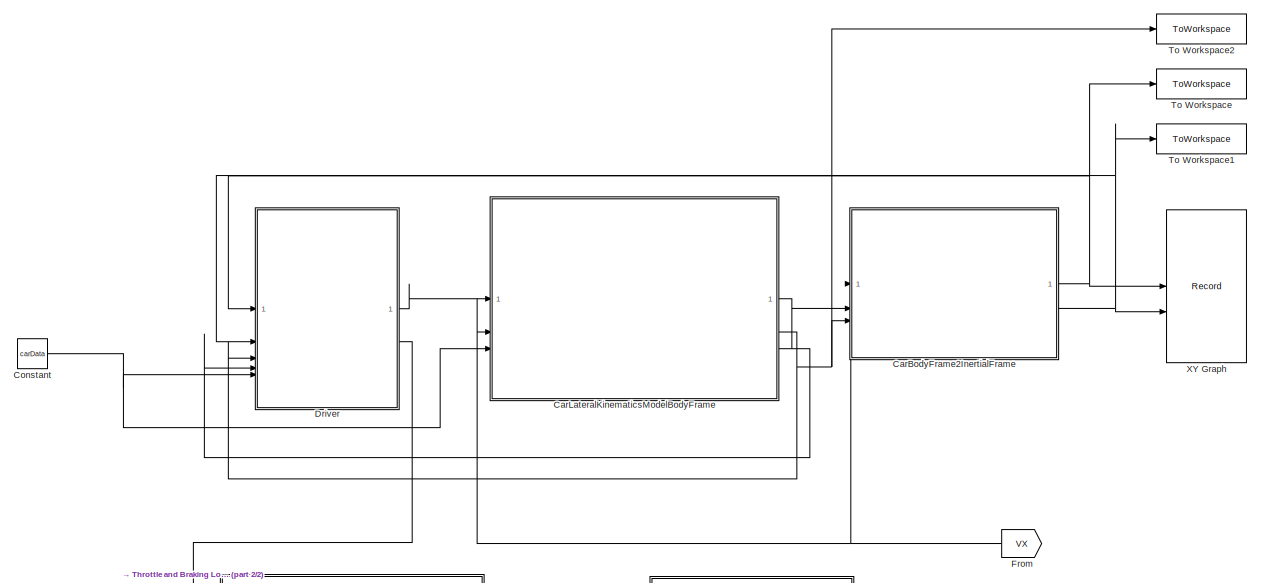
[diagram: root canvas - part 1/2, full width, top band]
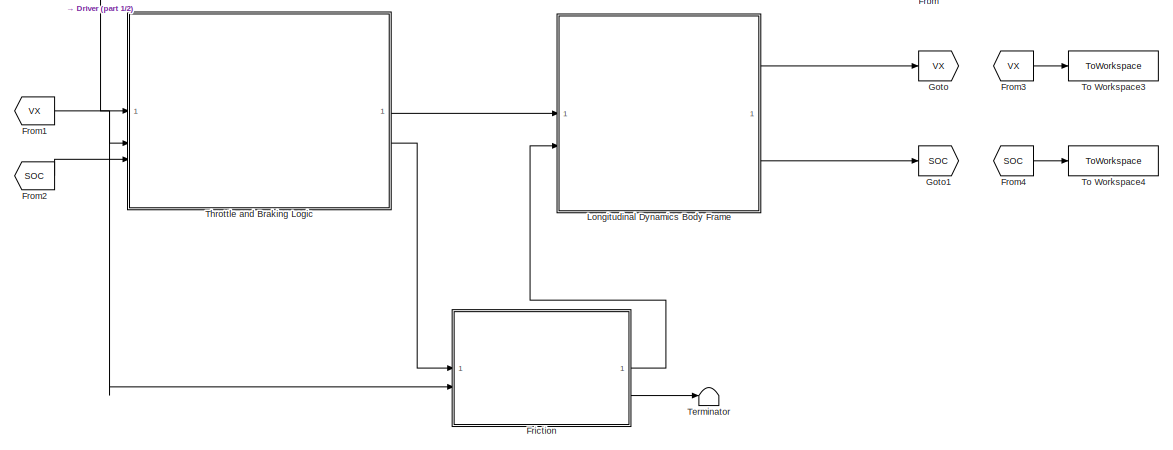
[diagram: root canvas - part 2/2, full width, bottom band]
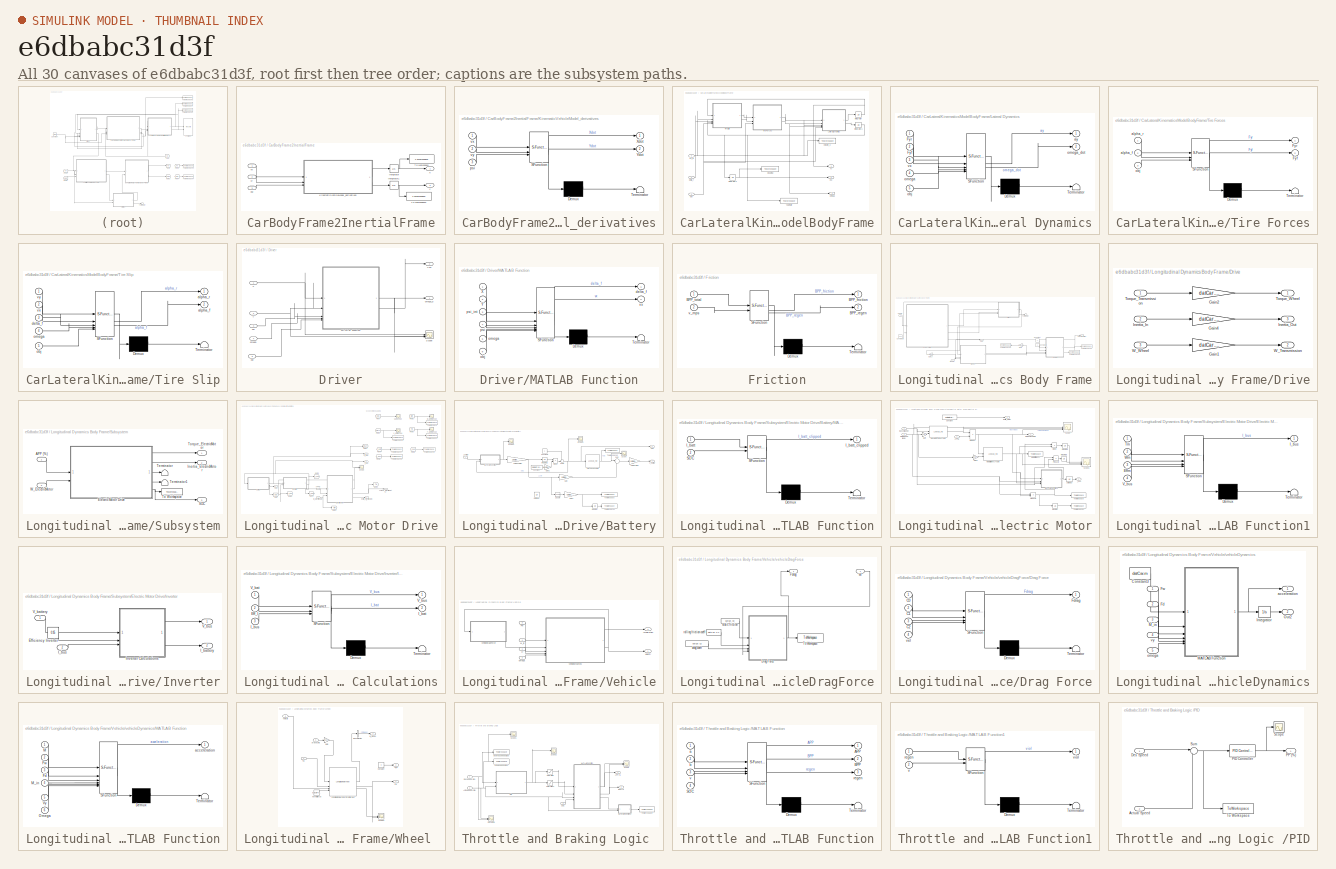
[diagram: thumbnail index - all 30 canvases of the model, root first then tree order]
MODEL slx_e6dbabc31d3f
KIND model
CONFIG AbsTol = auto
CONFIG EnableMultiTasking = off
CONFIG FixedStep = auto
CONFIG MaxStep = auto
CONFIG MinStep = auto
CONFIG RelTol = 1e-3
CONFIG SampleTimeConstraint = Unconstrained
CONFIG SolverName = VariableStepAuto
CONFIG StartTime = 0.0
CONFIG StopTime = 10.0
BLOCK [SubSystem] CarBodyFrame2InertialFrame
BLOCK [Integrator] CarBodyFrame2InertialFrame/Integrator
  InitialCondition = carData.init.X0
BLOCK [Integrator] CarBodyFrame2InertialFrame/Integrator1
  InitialCondition = carData.init.Y0
BLOCK [SubSystem] CarBodyFrame2InertialFrame/KinematicVehicleModel_derivatives
  ErrorFcn = Stateflow.Translate.translate
  PermitHierarchicalResolution = ExplicitOnly
  SFBlockType = MATLAB Function
  TreatAsAtomicUnit = on
BLOCK [Demux] CarBodyFrame2InertialFrame/KinematicVehicleModel_derivatives/ Demux 
  Outputs = 1
BLOCK [S-Function] CarBodyFrame2InertialFrame/KinematicVehicleModel_derivatives/ SFunction 
  EnableBusSupport = off
  FunctionName = sf_sfun
  PortCounts = [3 3]
  SFcnIsStateOwnerBlock = off
  SFunctionDeploymentMode = off
  Tag = Stateflow S-Function 3
BLOCK [Terminator] CarBodyFrame2InertialFrame/KinematicVehicleModel_derivatives/ Terminator 
BLOCK [Outport] CarBodyFrame2InertialFrame/KinematicVehicleModel_derivatives/Xdot
BLOCK [Outport] CarBodyFrame2InertialFrame/KinematicVehicleModel_derivatives/Ydot
  Port = 2
BLOCK [Inport] CarBodyFrame2InertialFrame/KinematicVehicleModel_derivatives/psi
  Port = 3
BLOCK [Inport] CarBodyFrame2InertialFrame/KinematicVehicleModel_derivatives/vx
BLOCK [Inport] CarBodyFrame2InertialFrame/KinematicVehicleModel_derivatives/vy
  Port = 2
BLOCK [ToWorkspace] CarBodyFrame2InertialFrame/To Workspace
  FixptAsFi = on
  MaxDataPoints = inf
  SampleTime = -1
  SaveFormat = Timeseries
  VariableName = X
BLOCK [ToWorkspace] CarBodyFrame2InertialFrame/To Workspace1
  FixptAsFi = on
  MaxDataPoints = inf
  SampleTime = -1
  SaveFormat = Timeseries
  VariableName = Y
BLOCK [Outport] CarBodyFrame2InertialFrame/X
BLOCK [Outport] CarBodyFrame2InertialFrame/Y
  Port = 2
BLOCK [Inport] CarBodyFrame2InertialFrame/psi
  Port = 3
BLOCK [Inport] CarBodyFrame2InertialFrame/vx
BLOCK [Inport] CarBodyFrame2InertialFrame/vy
  Port = 2
BLOCK [SubSystem] CarLateralKinematicsModelBodyFrame
BLOCK [ToWorkspace] CarLateralKinematicsModelBodyFrame/Heading
  FixptAsFi = on
  MaxDataPoints = inf
  SampleTime = -1
  SaveFormat = Timeseries
  VariableName = psi
BLOCK [Integrator] CarLateralKinematicsModelBodyFrame/Integrator
BLOCK [Integrator] CarLateralKinematicsModelBodyFrame/Integrator1
BLOCK [Integrator] CarLateralKinematicsModelBodyFrame/Integrator2
BLOCK [SubSystem] CarLateralKinematicsModelBodyFrame/Lateral Dynamics
  ErrorFcn = Stateflow.Translate.translate
  PermitHierarchicalResolution = ExplicitOnly
  SFBlockType = MATLAB Function
  TreatAsAtomicUnit = on
BLOCK [Demux] CarLateralKinematicsModelBodyFrame/Lateral Dynamics/ Demux 
  Outputs = 1
BLOCK [S-Function] CarLateralKinematicsModelBodyFrame/Lateral Dynamics/ SFunction 
  EnableBusSupport = off
  FunctionName = sf_sfun
  PortCounts = [5 3]
  SFcnIsStateOwnerBlock = off
  SFunctionDeploymentMode = off
  Tag = Stateflow S-Function 4
BLOCK [Terminator] CarLateralKinematicsModelBodyFrame/Lateral Dynamics/ Terminator 
BLOCK [Inport] CarLateralKinematicsModelBodyFrame/Lateral Dynamics/Fyf
  Port = 2
BLOCK [Inport] CarLateralKinematicsModelBodyFrame/Lateral Dynamics/Fyr
BLOCK [Outport] CarLateralKinematicsModelBodyFrame/Lateral Dynamics/ay
BLOCK [Inport] CarLateralKinematicsModelBodyFrame/Lateral Dynamics/obj
  Port = 5
BLOCK [Inport] CarLateralKinematicsModelBodyFrame/Lateral Dynamics/omega
  Port = 4
BLOCK [Outport] CarLateralKinematicsModelBodyFrame/Lateral Dynamics/omega_dot
  Port = 2
BLOCK [Inport] CarLateralKinematicsModelBodyFrame/Lateral Dynamics/vx
  Port = 3
BLOCK [SubSystem] CarLateralKinematicsModelBodyFrame/Tire Forces
  ErrorFcn = Stateflow.Translate.translate
  PermitHierarchicalResolution = ExplicitOnly
  SFBlockType = MATLAB Function
  TreatAsAtomicUnit = on
BLOCK [Demux] CarLateralKinematicsModelBodyFrame/Tire Forces/ Demux 
  Outputs = 1
BLOCK [S-Function] CarLateralKinematicsModelBodyFrame/Tire Forces/ SFunction 
  EnableBusSupport = off
  FunctionName = sf_sfun
  PortCounts = [3 3]
  SFcnIsStateOwnerBlock = off
  SFunctionDeploymentMode = off
  Tag = Stateflow S-Function 2
BLOCK [Terminator] CarLateralKinematicsModelBodyFrame/Tire Forces/ Terminator 
BLOCK [Outport] CarLateralKinematicsModelBodyFrame/Tire Forces/Fyf
  Port = 2
BLOCK [Outport] CarLateralKinematicsModelBodyFrame/Tire Forces/Fyr
BLOCK [Inport] CarLateralKinematicsModelBodyFrame/Tire Forces/alpha_f
  Port = 2
BLOCK [Inport] CarLateralKinematicsModelBodyFrame/Tire Forces/alpha_r
BLOCK [Inport] CarLateralKinematicsModelBodyFrame/Tire Forces/obj
  Port = 3
BLOCK [SubSystem] CarLateralKinematicsModelBodyFrame/Tire Slip
  ErrorFcn = Stateflow.Translate.translate
  PermitHierarchicalResolution = ExplicitOnly
  SFBlockType = MATLAB Function
  TreatAsAtomicUnit = on
BLOCK [Demux] CarLateralKinematicsModelBodyFrame/Tire Slip/ Demux 
  Outputs = 1
BLOCK [S-Function] CarLateralKinematicsModelBodyFrame/Tire Slip/ SFunction 
  EnableBusSupport = off
  FunctionName = sf_sfun
  PortCounts = [5 3]
  SFcnIsStateOwnerBlock = off
  SFunctionDeploymentMode = off
  Tag = Stateflow S-Function 1
BLOCK [Terminator] CarLateralKinematicsModelBodyFrame/Tire Slip/ Terminator 
BLOCK [Outport] CarLateralKinematicsModelBodyFrame/Tire Slip/alpha_f
  Port = 2
BLOCK [Outport] CarLateralKinematicsModelBodyFrame/Tire Slip/alpha_r
BLOCK [Inport] CarLateralKinematicsModelBodyFrame/Tire Slip/delta_f
  Port = 3
BLOCK [Inport] CarLateralKinematicsModelBodyFrame/Tire Slip/obj
  Port = 5
BLOCK [Inport] CarLateralKinematicsModelBodyFrame/Tire Slip/omega
  Port = 4
BLOCK [Inport] CarLateralKinematicsModelBodyFrame/Tire Slip/vx
  Port = 2
BLOCK [Inport] CarLateralKinematicsModelBodyFrame/Tire Slip/vy
BLOCK [ToWorkspace] CarLateralKinematicsModelBodyFrame/Velocity_X
  FixptAsFi = on
  MaxDataPoints = inf
  SampleTime = -1
  SaveFormat = Timeseries
  VariableName = vx
BLOCK [ToWorkspace] CarLateralKinematicsModelBodyFrame/Yaw Rate
  FixptAsFi = on
  MaxDataPoints = inf
  SampleTime = -1
  SaveFormat = Timeseries
  VariableName = omega
BLOCK [Inport] CarLateralKinematicsModelBodyFrame/delta_f
BLOCK [Inport] CarLateralKinematicsModelBodyFrame/obj
  Port = 3
BLOCK [Outport] CarLateralKinematicsModelBodyFrame/omega
  Port = 3
BLOCK [Outport] CarLateralKinematicsModelBodyFrame/psi
  Port = 2
BLOCK [Inport] CarLateralKinematicsModelBodyFrame/vx_d 
  Port = 2
BLOCK [Outport] CarLateralKinematicsModelBodyFrame/vy 
BLOCK [Constant] Constant
  OutDataTypeStr = Bus: slBus1
  Value = carData
BLOCK [SubSystem] Driver
BLOCK [SubSystem] Driver/MATLAB Function
  ErrorFcn = Stateflow.Translate.translate
  PermitHierarchicalResolution = ExplicitOnly
  SFBlockType = MATLAB Function
  TreatAsAtomicUnit = on
BLOCK [Demux] Driver/MATLAB Function/ Demux 
  Outputs = 1
BLOCK [S-Function] Driver/MATLAB Function/ SFunction 
  EnableBusSupport = off
  FunctionName = sf_sfun
  PortCounts = [6 3]
  SFcnIsStateOwnerBlock = off
  SFunctionDeploymentMode = off
  Tag = Stateflow S-Function 8
BLOCK [Terminator] Driver/MATLAB Function/ Terminator 
BLOCK [Inport] Driver/MATLAB Function/X
BLOCK [Inport] Driver/MATLAB Function/Y
  Port = 2
BLOCK [Outport] Driver/MATLAB Function/delta_f
BLOCK [Inport] Driver/MATLAB Function/obj
  Port = 6
BLOCK [Inport] Driver/MATLAB Function/omega
  Port = 5
BLOCK [Inport] Driver/MATLAB Function/psi
  Port = 4
BLOCK [Inport] Driver/MATLAB Function/psi_int
  Port = 3
BLOCK [Outport] Driver/MATLAB Function/vx
  Port = 2
BLOCK [Scope] Driver/Scope
  ActiveDisplayYMaximum = 1255.09761
  ActiveDisplayYMinimum = -351.50186
  Floating = off
  GraphicalSettings = {"GraphicalSettings":{"LegacySettings":true,"Style":{"Style":{"AxesColor":"[0 0 0]","ChannelNames":["","",""],"ColorOrder":"[1 1 0.0666666666666667;0.0745098039215686 0.623529411764706 1;1 0.411764705882353 0.16078431372549;0.392156862745098 0.831372549019608 0.0745098039215686;0.717647058823529 0.274509803921569 1;0.0588235294117647 1 1;1 0.0745098039215686 0.650980392156863]","CurrentConfigurati...<+405ch>
  LayoutDimensionsString = [3 1]
  MultipleDisplayCache = [{"MaxYLimMag":1255.09761,"MaxYLimReal":1255.09761,"MinYLimMag":0,"MinYLimReal":-351.50186,"PlotAsMagnitudePhase":false,"ShowGrid":true,"ShowLegend":false,"Title":"%<SignalLabel>","YLabel":""},{"MaxYLimMag":10,"MaxYLimReal":437.08813,"MinYLimMag":0,"MinYLimReal":-66.34034,"PlotAsMagnitudePhase":false,"ShowGrid":true,"ShowLegend":false,"Title":"%<SignalLabel>","YLabel":""},{"MaxYLimMag":10,"MaxYLim...<+150ch>
  NumInputPorts = 3
  WasSavedAsWebScope = on
  WindowPosition = [1 41 2560 1323]
BLOCK [Outport] Driver/Vxd
  Port = 2
BLOCK [Inport] Driver/X
BLOCK [Inport] Driver/Y
  Port = 2
BLOCK [Inport] Driver/obj
  Port = 5
BLOCK [Inport] Driver/omega
  Port = 4
BLOCK [Outport] Driver/omega_d
BLOCK [Inport] Driver/psi
  Port = 3
BLOCK [SubSystem] Friction
  ErrorFcn = Stateflow.Translate.translate
  PermitHierarchicalResolution = ExplicitOnly
  SFBlockType = MATLAB Function
  TreatAsAtomicUnit = on
BLOCK [Demux] Friction/ Demux 
  Outputs = 1
BLOCK [S-Function] Friction/ SFunction 
  EnableBusSupport = off
  FunctionName = sf_sfun
  PortCounts = [2 3]
  SFcnIsStateOwnerBlock = off
  SFunctionDeploymentMode = off
  Tag = Stateflow S-Function 7
BLOCK [Terminator] Friction/ Terminator 
BLOCK [Outport] Friction/BPP_friction
BLOCK [Outport] Friction/BPP_regen
  Port = 2
BLOCK [Inport] Friction/BPP_total
BLOCK [Inport] Friction/v_mps
  Port = 2
BLOCK [From] From
  GotoTag = VX
  NameLocation = top
BLOCK [From] From1
  GotoTag = VX
BLOCK [From] From2
  GotoTag = SOC
BLOCK [From] From3
  GotoTag = VX
BLOCK [From] From4
  GotoTag = SOC
BLOCK [Goto] Goto
  GotoTag = VX
BLOCK [Goto] Goto1
  GotoTag = SOC
BLOCK [SubSystem] Longitudinal Dynamics Body Frame
BLOCK [Inport] Longitudinal Dynamics Body Frame/APP (%)
BLOCK [Inport] Longitudinal Dynamics Body Frame/BPP (%) 
  Port = 2
BLOCK [Constant] Longitudinal Dynamics Body Frame/Constant
  Value = 0
BLOCK [Constant] Longitudinal Dynamics Body Frame/Constant1
  Value = 0
BLOCK [Constant] Longitudinal Dynamics Body Frame/Constant2
  Value = 1000
BLOCK [SubSystem] Longitudinal Dynamics Body Frame/Drive
BLOCK [Gain] Longitudinal Dynamics Body Frame/Drive/Gain1
  Gain = datCar.FDRatio
BLOCK [Gain] Longitudinal Dynamics Body Frame/Drive/Gain2
  Gain = datCar.FDRatio
BLOCK [Gain] Longitudinal Dynamics Body Frame/Drive/Gain4
  Gain = datCar.FDRatio^2
BLOCK [Inport] Longitudinal Dynamics Body Frame/Drive/Inertia_In
  Port = 2
BLOCK [Outport] Longitudinal Dynamics Body Frame/Drive/Inertia_Out
  Port = 3
BLOCK [Inport] Longitudinal Dynamics Body Frame/Drive/Torque_Transmission
BLOCK [Outport] Longitudinal Dynamics Body Frame/Drive/Torque_Wheel
BLOCK [Outport] Longitudinal Dynamics Body Frame/Drive/W_Transmission
  Port = 2
BLOCK [Inport] Longitudinal Dynamics Body Frame/Drive/W_Wheel
  Port = 3
BLOCK [Gain] Longitudinal Dynamics Body Frame/Gain
  Gain = -datCar.radius
BLOCK [Gain] Longitudinal Dynamics Body Frame/Gain1
  Gain = 1/datCar.radius
BLOCK [Outport] Longitudinal Dynamics Body Frame/SOC
  Port = 2
BLOCK [SubSystem] Longitudinal Dynamics Body Frame/Subsystem
BLOCK [Inport] Longitudinal Dynamics Body Frame/Subsystem/APP (%)
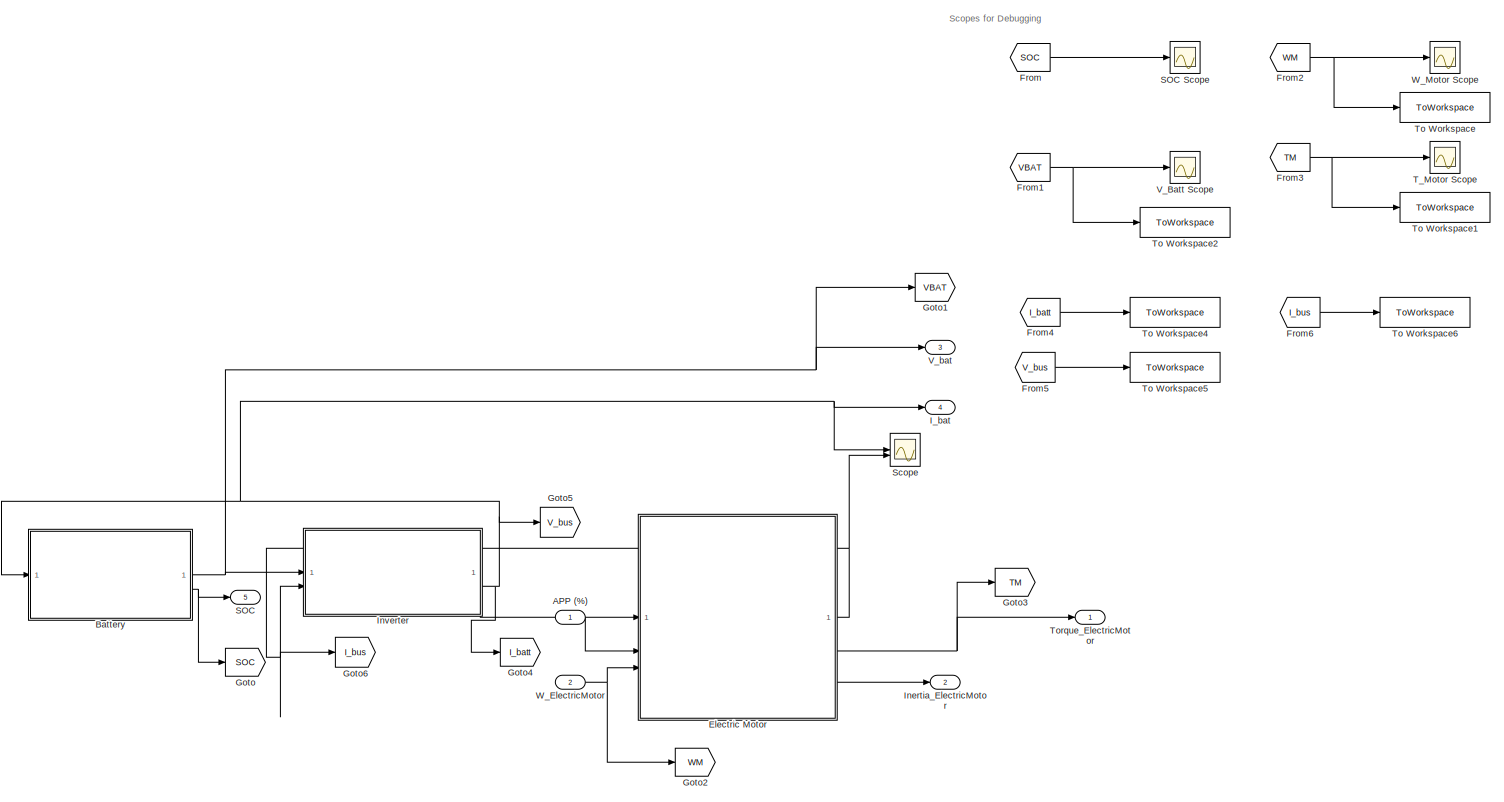
[diagram: Longitudinal Dynamics Body Frame/Subsystem/Electric Motor Drive - part 1/1, most of the canvas]
BLOCK [SubSystem] Longitudinal Dynamics Body Frame/Subsystem/Electric Motor Drive
BLOCK [Inport] Longitudinal Dynamics Body Frame/Subsystem/Electric Motor Drive/APP (%)
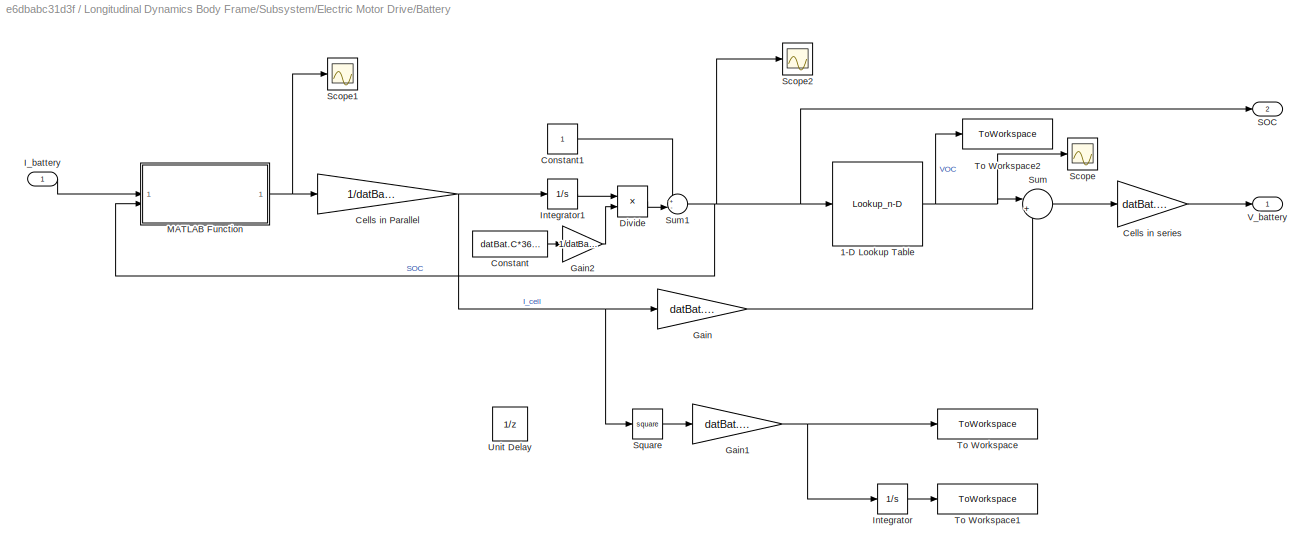
BLOCK [SubSystem] Longitudinal Dynamics Body Frame/Subsystem/Electric Motor Drive/Battery
BLOCK [Lookup_n-D] Longitudinal Dynamics Body Frame/Subsystem/Electric Motor Drive/Battery/1-D Lookup Table
  BreakpointsForDimension1 = datBat.SOC
  ExtrapMethod = Clip
  InputPortMap = u0
  InternalRulePriority = Speed
  NumberOfTableDimensions = 1
  RndMeth = Simplest
  Table = datBat.OCV
  UseLastTableValue = on
BLOCK [Gain] Longitudinal Dynamics Body Frame/Subsystem/Electric Motor Drive/Battery/Cells in Parallel
  Gain = 1/datBat.numParallel
BLOCK [Gain] Longitudinal Dynamics Body Frame/Subsystem/Electric Motor Drive/Battery/Cells in series
  Gain = datBat.numSeries
BLOCK [Constant] Longitudinal Dynamics Body Frame/Subsystem/Electric Motor Drive/Battery/Constant
  Value = datBat.C*3600
BLOCK [Constant] Longitudinal Dynamics Body Frame/Subsystem/Electric Motor Drive/Battery/Constant1
BLOCK [Product] Longitudinal Dynamics Body Frame/Subsystem/Electric Motor Drive/Battery/Divide
  Inputs = */
BLOCK [Gain] Longitudinal Dynamics Body Frame/Subsystem/Electric Motor Drive/Battery/Gain
  Gain = datBat.Rint
BLOCK [Gain] Longitudinal Dynamics Body Frame/Subsystem/Electric Motor Drive/Battery/Gain1
  Gain = datBat.Rint
BLOCK [Gain] Longitudinal Dynamics Body Frame/Subsystem/Electric Motor Drive/Battery/Gain2
  Gain = 1/datBat.numParallel
BLOCK [Inport] Longitudinal Dynamics Body Frame/Subsystem/Electric Motor Drive/Battery/I_battery
BLOCK [Integrator] Longitudinal Dynamics Body Frame/Subsystem/Electric Motor Drive/Battery/Integrator
BLOCK [Integrator] Longitudinal Dynamics Body Frame/Subsystem/Electric Motor Drive/Battery/Integrator1
  InitialCondition = 1459.5
BLOCK [SubSystem] Longitudinal Dynamics Body Frame/Subsystem/Electric Motor Drive/Battery/MATLAB Function
  ErrorFcn = Stateflow.Translate.translate
  LibrarySourceBlock = simulink/User-Defined\nFunctions/MATLAB Function
  PermitHierarchicalResolution = ExplicitOnly
  SFBlockType = MATLAB Function
  TreatAsAtomicUnit = on
BLOCK [Demux] Longitudinal Dynamics Body Frame/Subsystem/Electric Motor Drive/Battery/MATLAB Function/ Demux 
  Outputs = 1
BLOCK [S-Function] Longitudinal Dynamics Body Frame/Subsystem/Electric Motor Drive/Battery/MATLAB Function/ SFunction 
  EnableBusSupport = off
  FunctionName = sf_sfun
  PortCounts = [2 2]
  SFcnIsStateOwnerBlock = off
  SFunctionDeploymentMode = off
  Tag = Stateflow S-Function 13
BLOCK [Terminator] Longitudinal Dynamics Body Frame/Subsystem/Electric Motor Drive/Battery/MATLAB Function/ Terminator 
BLOCK [Inport] Longitudinal Dynamics Body Frame/Subsystem/Electric Motor Drive/Battery/MATLAB Function/I_batt
BLOCK [Outport] Longitudinal Dynamics Body Frame/Subsystem/Electric Motor Drive/Battery/MATLAB Function/I_batt_clipped
BLOCK [Inport] Longitudinal Dynamics Body Frame/Subsystem/Electric Motor Drive/Battery/MATLAB Function/SOC
  Port = 2
BLOCK [Outport] Longitudinal Dynamics Body Frame/Subsystem/Electric Motor Drive/Battery/SOC
  Port = 2
BLOCK [Scope] Longitudinal Dynamics Body Frame/Subsystem/Electric Motor Drive/Battery/Scope
  ActiveDisplayYMaximum = 3.9505775108183836
  ActiveDisplayYMinimum = 3.9447746248567759
  DataLoggingVariableName = ScopeData5
  Floating = off
  GraphicalSettings = {"Style":{"BackgroundColor":[0.12941176470588237,0.12941176470588237,0.12941176470588237],"AxesColor":[0.07058823529411765,0.07058823529411765,0.07058823529411765],"LabelsColor":[0.8509803921568627,0.8509803921568627,0.8509803921568627],"PreserveColors":false,"Visible":[true],"LineStyle":["-"],"LineWidth":[1.5],"BarWidth":[0.9],"LineColor":["auto"],"LineFaceAlpha":[1],"LineEdgeAlpha":[1],"Marker":...<+1933ch>
  MultipleDisplayCache = [{"MaxYLimMag":3.9505775108183836,"MaxYLimReal":3.9505775108183836,"MinYLimMag":3.9447746248567759,"MinYLimReal":3.9447746248567759,"PlotAsMagnitudePhase":false,"ShowGrid":true,"ShowLegend":false,"Title":"%<SignalLabel>","YLabel":""}]
  NumInputPorts = 1
  ScopeFrameLocation = window
  WasSavedAsWebScope = on
  WindowPosition = [1000.000000,510.000000,560.000000,420.000000,]
BLOCK [Scope] Longitudinal Dynamics Body Frame/Subsystem/Electric Motor Drive/Battery/Scope1
  ActiveDisplayYMaximum = 120.71055450400272
  ActiveDisplayYMinimum = -38.071970075878966
  DataLoggingVariableName = ScopeData6
  Floating = off
  GraphicalSettings = {"Style":{"BackgroundColor":[0.12941176470588237,0.12941176470588237,0.12941176470588237],"AxesColor":[0.07058823529411765,0.07058823529411765,0.07058823529411765],"LabelsColor":[0.8509803921568627,0.8509803921568627,0.8509803921568627],"PreserveColors":false,"Visible":[true],"LineStyle":["-"],"LineWidth":[1.5],"BarWidth":[0.9],"LineColor":["auto"],"LineFaceAlpha":[1],"LineEdgeAlpha":[1],"Marker":...<+1964ch>
  MultipleDisplayCache = [{"MaxYLimMag":120.71055450400272,"MaxYLimReal":120.71055450400272,"MinYLimMag":0,"MinYLimReal":-38.071970075878966,"PlotAsMagnitudePhase":false,"ShowGrid":true,"ShowLegend":false,"Title":"%<SignalLabel>","YLabel":""}]
  NumInputPorts = 1
  ScopeFrameLocation = window
  WasSavedAsWebScope = on
  WindowPosition = [1000.000000,510.000000,560.000000,420.000000,]
BLOCK [Scope] Longitudinal Dynamics Body Frame/Subsystem/Electric Motor Drive/Battery/Scope2
  ActiveDisplayYMaximum = 0.80115502179471731
  ActiveDisplayYMinimum = 0.78954924829198925
  Floating = off
  GraphicalSettings = {"Style":{"BackgroundColor":[0.12941176470588237,0.12941176470588237,0.12941176470588237],"AxesColor":[0.07058823529411765,0.07058823529411765,0.07058823529411765],"LabelsColor":[0.8509803921568627,0.8509803921568627,0.8509803921568627],"PreserveColors":false,"Visible":[true],"LineStyle":["-"],"LineWidth":[1.5],"BarWidth":[0.9],"LineColor":["auto"],"LineFaceAlpha":[1],"LineEdgeAlpha":[1],"Marker":...<+1990ch>
  MultipleDisplayCache = [{"MaxYLimMag":0.80115502179471731,"MaxYLimReal":0.80115502179471731,"MinYLimMag":0.78954924829198925,"MinYLimReal":0.78954924829198925,"PlotAsMagnitudePhase":false,"ShowGrid":true,"ShowLegend":false,"Title":"%<SignalLabel>","YLabel":""}]
  NumInputPorts = 1
  ScopeFrameLocation = window
  WasSavedAsWebScope = on
  WindowPosition = [1000.000000,510.000000,560.000000,420.000000,]
BLOCK [Math] Longitudinal Dynamics Body Frame/Subsystem/Electric Motor Drive/Battery/Square
  Operator = square
BLOCK [Sum] Longitudinal Dynamics Body Frame/Subsystem/Electric Motor Drive/Battery/Sum
  Inputs = |+-
BLOCK [Sum] Longitudinal Dynamics Body Frame/Subsystem/Electric Motor Drive/Battery/Sum1
  Inputs = +-|
BLOCK [ToWorkspace] Longitudinal Dynamics Body Frame/Subsystem/Electric Motor Drive/Battery/To Workspace
  FixptAsFi = on
  MaxDataPoints = inf
  SampleTime = -1
  SaveFormat = Timeseries
  VariableName = BatteryPowerLosses
BLOCK [ToWorkspace] Longitudinal Dynamics Body Frame/Subsystem/Electric Motor Drive/Battery/To Workspace1
  FixptAsFi = on
  MaxDataPoints = inf
  SampleTime = -1
  SaveFormat = Timeseries
  VariableName = BatteryEnergyLosses
BLOCK [ToWorkspace] Longitudinal Dynamics Body Frame/Subsystem/Electric Motor Drive/Battery/To Workspace2
  FixptAsFi = on
  MaxDataPoints = inf
  SampleTime = -1
  SaveFormat = Timeseries
  VariableName = OCV
BLOCK [UnitDelay] Longitudinal Dynamics Body Frame/Subsystem/Electric Motor Drive/Battery/Unit Delay
  HasFrameUpgradeWarning = on
  SampleTime = -1
BLOCK [Outport] Longitudinal Dynamics Body Frame/Subsystem/Electric Motor Drive/Battery/V_battery
BLOCK [SubSystem] Longitudinal Dynamics Body Frame/Subsystem/Electric Motor Drive/Electric Motor
BLOCK [Inport] Longitudinal Dynamics Body Frame/Subsystem/Electric Motor Drive/Electric Motor/APP (%)
  Port = 2
BLOCK [Inport] Longitudinal Dynamics Body Frame/Subsystem/Electric Motor Drive/Electric Motor/Bus Voltage (V)
BLOCK [Constant] Longitudinal Dynamics Body Frame/Subsystem/Electric Motor Drive/Electric Motor/Constant
  Value = datMotor.inertia
BLOCK [Product] Longitudinal Dynamics Body Frame/Subsystem/Electric Motor Drive/Electric Motor/Divide
  Inputs = */
BLOCK [Gain] Longitudinal Dynamics Body Frame/Subsystem/Electric Motor Drive/Electric Motor/Gain
  Gain = 30/pi
BLOCK [Gain] Longitudinal Dynamics Body Frame/Subsystem/Electric Motor Drive/Electric Motor/Gain1
  Gain = 30/pi
BLOCK [Outport] Longitudinal Dynamics Body Frame/Subsystem/Electric Motor Drive/Electric Motor/I_bus
BLOCK [Outport] Longitudinal Dynamics Body Frame/Subsystem/Electric Motor Drive/Electric Motor/Inertia_Motor
  Port = 3
BLOCK [Integrator] Longitudinal Dynamics Body Frame/Subsystem/Electric Motor Drive/Electric Motor/Integrator
BLOCK [Integrator] Longitudinal Dynamics Body Frame/Subsystem/Electric Motor Drive/Electric Motor/Integrator1
BLOCK [Integrator] Longitudinal Dynamics Body Frame/Subsystem/Electric Motor Drive/Electric Motor/Integrator2
BLOCK [SubSystem] Longitudinal Dynamics Body Frame/Subsystem/Electric Motor Drive/Electric Motor/MATLAB Function1
  ErrorFcn = Stateflow.Translate.translate
  LibrarySourceBlock = simulink/User-Defined\nFunctions/MATLAB Function
  PermitHierarchicalResolution = ExplicitOnly
  SFBlockType = MATLAB Function
  TreatAsAtomicUnit = on
BLOCK [Demux] Longitudinal Dynamics Body Frame/Subsystem/Electric Motor Drive/Electric Motor/MATLAB Function1/ Demux 
  Outputs = 1
BLOCK [S-Function] Longitudinal Dynamics Body Frame/Subsystem/Electric Motor Drive/Electric Motor/MATLAB Function1/ SFunction 
  EnableBusSupport = off
  FunctionName = sf_sfun
  PortCounts = [4 2]
  SFcnIsStateOwnerBlock = off
  SFunctionDeploymentMode = off
  Tag = Stateflow S-Function 5
BLOCK [Terminator] Longitudinal Dynamics Body Frame/Subsystem/Electric Motor Drive/Electric Motor/MATLAB Function1/ Terminator 
BLOCK [Inport] Longitudinal Dynamics Body Frame/Subsystem/Electric Motor Drive/Electric Motor/MATLAB Function1/Effm
  Port = 3
BLOCK [Outport] Longitudinal Dynamics Body Frame/Subsystem/Electric Motor Drive/Electric Motor/MATLAB Function1/I_bus
BLOCK [Inport] Longitudinal Dynamics Body Frame/Subsystem/Electric Motor Drive/Electric Motor/MATLAB Function1/Tm
BLOCK [Inport] Longitudinal Dynamics Body Frame/Subsystem/Electric Motor Drive/Electric Motor/MATLAB Function1/V_bus
  Port = 4
BLOCK [Inport] Longitudinal Dynamics Body Frame/Subsystem/Electric Motor Drive/Electric Motor/MATLAB Function1/Wm
  Port = 2
BLOCK [Lookup_n-D] Longitudinal Dynamics Body Frame/Subsystem/Electric Motor Drive/Electric Motor/Max Motor Torque Table
  BreakpointsForDimension1 = datMotor.vbus
  BreakpointsForDimension2 = datMotor.rpm
  BreakpointsForDimension3 = [5, 7]
  ExtrapMethod = Clip
  InputPortMap = u0,u1
  InternalRulePriority = Speed
  RndMeth = Simplest
  Table = datMotor.maxtorque
  UseLastTableValue = on
BLOCK [ToWorkspace] Longitudinal Dynamics Body Frame/Subsystem/Electric Motor Drive/Electric Motor/Motor Efficiency
  FixptAsFi = on
  MaxDataPoints = inf
  SampleTime = -1
  SaveFormat = Timeseries
  VariableName = efficiency_motor
BLOCK [Lookup_n-D] Longitudinal Dynamics Body Frame/Subsystem/Electric Motor Drive/Electric Motor/Motor Efficiency Table
  BreakpointsForDimension1 = datMotor.eta_torque
  BreakpointsForDimension2 = datMotor.eta_speed
  BreakpointsForDimension3 = [5, 7]
  ExtrapMethod = Clip
  InputPortMap = u0,u1
  InternalRulePriority = Speed
  RndMeth = Simplest
  Table = datMotor.eta_val
  UseLastTableValue = on
BLOCK [Inport] Longitudinal Dynamics Body Frame/Subsystem/Electric Motor Drive/Electric Motor/Motor Speed (rad//s)
  Port = 3
BLOCK [Outport] Longitudinal Dynamics Body Frame/Subsystem/Electric Motor Drive/Electric Motor/Motor Torque (Nm)
  Port = 2
BLOCK [Product] Longitudinal Dynamics Body Frame/Subsystem/Electric Motor Drive/Electric Motor/Product
BLOCK [Product] Longitudinal Dynamics Body Frame/Subsystem/Electric Motor Drive/Electric Motor/Product1
BLOCK [Product] Longitudinal Dynamics Body Frame/Subsystem/Electric Motor Drive/Electric Motor/Product2
BLOCK [Scope] Longitudinal Dynamics Body Frame/Subsystem/Electric Motor Drive/Electric Motor/Scope
  ActiveDisplayYMaximum = 699.63306
  ActiveDisplayYMinimum = -117.53104
  DataLoggingVariableName = ScopeData1
  Floating = off
  GraphicalSettings = {"GraphicalSettings":{"LegacySettings":true,"Style":{"Style":{"AxesColor":"[0 0 0]","ChannelNames":[""],"ColorOrder":"[1 0.909803921568627 0.392156862745098;0.149019607843137 0.549019607843137 0.866666666666667;0.96078431372549 0.466666666666667 0.16078431372549;0.286274509803922 0.858823529411765 0.250980392156863;0.752941176470588 0.36078431372549 0.984313725490196;0.423529411764706 0.9568627450...<+438ch>
  MultipleDisplayCache = [{"MaxYLimMag":699.63306,"MaxYLimReal":699.63306,"MinYLimMag":0,"MinYLimReal":-117.53104,"PlotAsMagnitudePhase":false,"ShowGrid":true,"ShowLegend":true,"Title":"%<SignalLabel>","YLabel":""}]
  NumInputPorts = 3
  ShowLegend = on
  WasSavedAsWebScope = on
  WindowPosition = [502 121 560 420]
BLOCK [Scope] Longitudinal Dynamics Body Frame/Subsystem/Electric Motor Drive/Electric Motor/Scope1
  ActiveDisplayYMaximum = 7.1041133971085055E+6
  ActiveDisplayYMinimum = 7.0930778838839177E+6
  DataLoggingVariableName = ScopeData2
  Floating = off
  GraphicalSettings = {"AxesScalingProperties":{"AlignXAxis":"Center","AlignYAxis":"Center","AutoScaleXAxisLimits":false,"AxesScaling":"Manual","AxesScalingNumUpdates":10,"ExpandOnly":true,"ScaleAxesLimitsAtStop":false,"XAxisDataRange":100,"YAxisDataRange":80},"DisplayProperties":{"ColorOrder":["auto","auto","auto","auto","auto","auto","auto","auto","auto","auto","auto","auto","auto","auto","auto","auto","auto","auto",...<+2919ch>
  LayoutDimensionsString = [3,1]
  MultipleDisplayCache = [{"MaxYLimMag":8.2121582650506822E+6,"MaxYLimReal":7.1041133971085055E+6,"MinYLimMag":0,"MinYLimReal":7.0930778838839177E+6,"PlotAsMagnitudePhase":false,"ShowGrid":true,"ShowLegend":true,"Title":"%<SignalLabel>","YLabel":""},{"MaxYLimMag":7.529491624054715E+6,"MaxYLimReal":6.434897300239468E+6,"MinYLimMag":0,"MinYLimReal":5.8339101931089675E+6,"PlotAsMagnitudePhase":false,"ShowGrid":true,"ShowLege...<+259ch>
  NumInputPorts = 3
  ScopeFrameLocation = window
  ShowLegend = on
  WasSavedAsWebScope = on
  WindowPosition = [1.000000,49.000000,1536.000000,890.000000,]
BLOCK [ToWorkspace] Longitudinal Dynamics Body Frame/Subsystem/Electric Motor Drive/Electric Motor/To Workspace
  FixptAsFi = on
  MaxDataPoints = inf
  SampleTime = -1
  SaveFormat = Timeseries
  VariableName = MotorPower
BLOCK [ToWorkspace] Longitudinal Dynamics Body Frame/Subsystem/Electric Motor Drive/Electric Motor/To Workspace1
  FixptAsFi = on
  MaxDataPoints = inf
  SampleTime = -1
  SaveFormat = Timeseries
  VariableName = MotorEnergy
BLOCK [UnitDelay] Longitudinal Dynamics Body Frame/Subsystem/Electric Motor Drive/Electric Motor/Unit Delay
  HasFrameUpgradeWarning = on
  SampleTime = -1
BLOCK [From] Longitudinal Dynamics Body Frame/Subsystem/Electric Motor Drive/From
  GotoTag = SOC
BLOCK [From] Longitudinal Dynamics Body Frame/Subsystem/Electric Motor Drive/From1
  GotoTag = VBAT
BLOCK [From] Longitudinal Dynamics Body Frame/Subsystem/Electric Motor Drive/From2
  GotoTag = WM
BLOCK [From] Longitudinal Dynamics Body Frame/Subsystem/Electric Motor Drive/From3
  GotoTag = TM
BLOCK [From] Longitudinal Dynamics Body Frame/Subsystem/Electric Motor Drive/From4
  GotoTag = I_batt
BLOCK [From] Longitudinal Dynamics Body Frame/Subsystem/Electric Motor Drive/From5
  GotoTag = V_bus
BLOCK [From] Longitudinal Dynamics Body Frame/Subsystem/Electric Motor Drive/From6
  GotoTag = I_bus
BLOCK [Goto] Longitudinal Dynamics Body Frame/Subsystem/Electric Motor Drive/Goto
  GotoTag = SOC
BLOCK [Goto] Longitudinal Dynamics Body Frame/Subsystem/Electric Motor Drive/Goto1
  GotoTag = VBAT
BLOCK [Goto] Longitudinal Dynamics Body Frame/Subsystem/Electric Motor Drive/Goto2
  GotoTag = WM
BLOCK [Goto] Longitudinal Dynamics Body Frame/Subsystem/Electric Motor Drive/Goto3
  GotoTag = TM
BLOCK [Goto] Longitudinal Dynamics Body Frame/Subsystem/Electric Motor Drive/Goto4
  GotoTag = I_batt
BLOCK [Goto] Longitudinal Dynamics Body Frame/Subsystem/Electric Motor Drive/Goto5
  GotoTag = V_bus
BLOCK [Goto] Longitudinal Dynamics Body Frame/Subsystem/Electric Motor Drive/Goto6
  GotoTag = I_bus
BLOCK [Outport] Longitudinal Dynamics Body Frame/Subsystem/Electric Motor Drive/I_bat
  Port = 4
BLOCK [Outport] Longitudinal Dynamics Body Frame/Subsystem/Electric Motor Drive/Inertia_ElectricMotor
  Port = 2
BLOCK [SubSystem] Longitudinal Dynamics Body Frame/Subsystem/Electric Motor Drive/Inverter
BLOCK [Constant] Longitudinal Dynamics Body Frame/Subsystem/Electric Motor Drive/Inverter/Efficiency Inverter
  Value = 0.95
BLOCK [Outport] Longitudinal Dynamics Body Frame/Subsystem/Electric Motor Drive/Inverter/I_battery
  Port = 2
BLOCK [Inport] Longitudinal Dynamics Body Frame/Subsystem/Electric Motor Drive/Inverter/I_bus
  Port = 2
BLOCK [SubSystem] Longitudinal Dynamics Body Frame/Subsystem/Electric Motor Drive/Inverter/Inverter Calculations
  ErrorFcn = Stateflow.Translate.translate
  LibrarySourceBlock = simulink/User-Defined\nFunctions/MATLAB Function
  PermitHierarchicalResolution = ExplicitOnly
  SFBlockType = MATLAB Function
  TreatAsAtomicUnit = on
BLOCK [Demux] Longitudinal Dynamics Body Frame/Subsystem/Electric Motor Drive/Inverter/Inverter Calculations/ Demux 
  Outputs = 1
BLOCK [S-Function] Longitudinal Dynamics Body Frame/Subsystem/Electric Motor Drive/Inverter/Inverter Calculations/ SFunction 
  EnableBusSupport = off
  FunctionName = sf_sfun
  PortCounts = [3 3]
  SFcnIsStateOwnerBlock = off
  SFunctionDeploymentMode = off
  Tag = Stateflow S-Function 6
BLOCK [Terminator] Longitudinal Dynamics Body Frame/Subsystem/Electric Motor Drive/Inverter/Inverter Calculations/ Terminator 
BLOCK [Inport] Longitudinal Dynamics Body Frame/Subsystem/Electric Motor Drive/Inverter/Inverter Calculations/Eff_I
  Port = 2
BLOCK [Outport] Longitudinal Dynamics Body Frame/Subsystem/Electric Motor Drive/Inverter/Inverter Calculations/I_bat
  Port = 2
BLOCK [Inport] Longitudinal Dynamics Body Frame/Subsystem/Electric Motor Drive/Inverter/Inverter Calculations/I_bus
  Port = 3
BLOCK [Inport] Longitudinal Dynamics Body Frame/Subsystem/Electric Motor Drive/Inverter/Inverter Calculations/V_bat
BLOCK [Outport] Longitudinal Dynamics Body Frame/Subsystem/Electric Motor Drive/Inverter/Inverter Calculations/V_bus
BLOCK [Inport] Longitudinal Dynamics Body Frame/Subsystem/Electric Motor Drive/Inverter/V_battery
BLOCK [Outport] Longitudinal Dynamics Body Frame/Subsystem/Electric Motor Drive/Inverter/V_bus
BLOCK [Outport] Longitudinal Dynamics Body Frame/Subsystem/Electric Motor Drive/SOC
  Port = 5
BLOCK [Scope] Longitudinal Dynamics Body Frame/Subsystem/Electric Motor Drive/SOC Scope
  ActiveDisplayYMaximum = 0.80103
  ActiveDisplayYMinimum = 0.79068
  DataLoggingVariableName = ScopeData7
  Floating = off
  GraphicalSettings = {"GraphicalSettings":{"LegacySettings":true,"Style":{"AxesScalingProperties":{"ScaleAxesLimitsAtStop":false},"Style":{"AxesColor":"[0 0 0]","ChannelNames":[""],"ColorOrder":"[1 0.909803921568627 0.392156862745098;0.149019607843137 0.549019607843137 0.866666666666667;0.96078431372549 0.466666666666667 0.16078431372549;0.286274509803922 0.858823529411765 0.250980392156863;0.752941176470588 0.3607843...<+544ch>  <repeated x3 — deduplicated; at blocks: SOC Scope, T_Motor Scope, V_Batt Scope>
  MultipleDisplayCache = [{"MaxYLimMag":0.80103,"MaxYLimReal":0.80103,"MinYLimMag":0.79068,"MinYLimReal":0.79068,"PlotAsMagnitudePhase":false,"ShowGrid":true,"ShowLegend":false,"Title":"%<SignalLabel>","YLabel":""}]
  NumInputPorts = 1
  WasSavedAsWebScope = on
BLOCK [Scope] Longitudinal Dynamics Body Frame/Subsystem/Electric Motor Drive/Scope
  ActiveDisplayYMaximum = 118.26537
  ActiveDisplayYMinimum = -92.41521
  DataLoggingVariableName = ScopeData2
  Floating = off
  GraphicalSettings = {"GraphicalSettings":{"LegacySettings":true,"Style":{"AxesScalingProperties":{"ScaleAxesLimitsAtStop":false},"Style":{"AxesColor":"[0 0 0]","ChannelNames":[""],"ColorOrder":"[1 0.909803921568627 0.392156862745098;0.149019607843137 0.549019607843137 0.866666666666667;0.96078431372549 0.466666666666667 0.16078431372549;0.286274509803922 0.858823529411765 0.250980392156863;0.752941176470588 0.3607843...<+547ch>
  MultipleDisplayCache = [{"MaxYLimMag":118.26537,"MaxYLimReal":118.26537,"MinYLimMag":0,"MinYLimReal":-92.41521,"PlotAsMagnitudePhase":false,"ShowGrid":true,"ShowLegend":true,"Title":"%<SignalLabel>","YLabel":""}]
  NumInputPorts = 2
  ShowLegend = on
  WasSavedAsWebScope = on
BLOCK [Scope] Longitudinal Dynamics Body Frame/Subsystem/Electric Motor Drive/T_Motor Scope
  ActiveDisplayYMaximum = 115.47111
  ActiveDisplayYMinimum = -92.74121
  DataLoggingVariableName = ScopeData10
  Floating = off
  MultipleDisplayCache = [{"MaxYLimMag":115.47111,"MaxYLimReal":115.47111,"MinYLimMag":0,"MinYLimReal":-92.74121,"PlotAsMagnitudePhase":false,"ShowGrid":true,"ShowLegend":false,"Title":"%<SignalLabel>","YLabel":""}]
  NumInputPorts = 1
  WasSavedAsWebScope = on
BLOCK [ToWorkspace] Longitudinal Dynamics Body Frame/Subsystem/Electric Motor Drive/To Workspace
  FixptAsFi = on
  MaxDataPoints = inf
  SampleTime = -1
  SaveFormat = Timeseries
  VariableName = motor_speed
BLOCK [ToWorkspace] Longitudinal Dynamics Body Frame/Subsystem/Electric Motor Drive/To Workspace1
  FixptAsFi = on
  MaxDataPoints = inf
  SampleTime = -1
  SaveFormat = Timeseries
  VariableName = motor_torque
BLOCK [ToWorkspace] Longitudinal Dynamics Body Frame/Subsystem/Electric Motor Drive/To Workspace2
  FixptAsFi = on
  MaxDataPoints = inf
  SampleTime = -1
  SaveFormat = Timeseries
  VariableName = V_bat
BLOCK [ToWorkspace] Longitudinal Dynamics Body Frame/Subsystem/Electric Motor Drive/To Workspace4
  FixptAsFi = on
  MaxDataPoints = inf
  SampleTime = -1
  SaveFormat = Timeseries
  VariableName = I_bat
BLOCK [ToWorkspace] Longitudinal Dynamics Body Frame/Subsystem/Electric Motor Drive/To Workspace5
  FixptAsFi = on
  MaxDataPoints = inf
  SampleTime = -1
  SaveFormat = Timeseries
  VariableName = V_bus
BLOCK [ToWorkspace] Longitudinal Dynamics Body Frame/Subsystem/Electric Motor Drive/To Workspace6
  FixptAsFi = on
  MaxDataPoints = inf
  SampleTime = -1
  SaveFormat = Timeseries
  VariableName = I_bus
BLOCK [Outport] Longitudinal Dynamics Body Frame/Subsystem/Electric Motor Drive/Torque_ElectricMotor
BLOCK [Scope] Longitudinal Dynamics Body Frame/Subsystem/Electric Motor Drive/V_Batt Scope
  ActiveDisplayYMaximum = 391.49042
  ActiveDisplayYMinimum = 354.15627
  DataLoggingVariableName = ScopeData8
  Floating = off
  MultipleDisplayCache = [{"MaxYLimMag":391.49042,"MaxYLimReal":391.49042,"MinYLimMag":354.15627,"MinYLimReal":354.15627,"PlotAsMagnitudePhase":false,"ShowGrid":true,"ShowLegend":false,"Title":"%<SignalLabel>","YLabel":""}]
  NumInputPorts = 1
  WasSavedAsWebScope = on
BLOCK [Outport] Longitudinal Dynamics Body Frame/Subsystem/Electric Motor Drive/V_bat
  Port = 3
BLOCK [Inport] Longitudinal Dynamics Body Frame/Subsystem/Electric Motor Drive/W_ElectricMotor
  Port = 2
BLOCK [Scope] Longitudinal Dynamics Body Frame/Subsystem/Electric Motor Drive/W_Motor Scope
  ActiveDisplayYMaximum = 695.87961
  ActiveDisplayYMinimum = -83.74997
  DataLoggingVariableName = ScopeData9
  Floating = off
  GraphicalSettings = {"GraphicalSettings":{"LegacySettings":true,"Style":{"AxesScalingProperties":{"AxesScaling":"After N Updates"},"Style":{"AxesColor":"[0 0 0]","ChannelNames":[""],"ColorOrder":"[1 0.909803921568627 0.392156862745098;0.149019607843137 0.549019607843137 0.866666666666667;0.96078431372549 0.466666666666667 0.16078431372549;0.286274509803922 0.858823529411765 0.250980392156863;0.752941176470588 0.36078...<+546ch>
  MultipleDisplayCache = [{"MaxYLimMag":695.87961,"MaxYLimReal":695.87961,"MinYLimMag":0,"MinYLimReal":-83.74997,"PlotAsMagnitudePhase":false,"ShowGrid":true,"ShowLegend":true,"Title":"%<SignalLabel>","YLabel":""}]
  NumInputPorts = 1
  ShowLegend = on
  ShowTimeAxisLabel = on
  WasSavedAsWebScope = on
BLOCK [Outport] Longitudinal Dynamics Body Frame/Subsystem/Inertia_ElectricMotor
  Port = 2
BLOCK [Outport] Longitudinal Dynamics Body Frame/Subsystem/SOC
  Port = 3
BLOCK [Terminator] Longitudinal Dynamics Body Frame/Subsystem/Terminator
BLOCK [Terminator] Longitudinal Dynamics Body Frame/Subsystem/Terminator1
BLOCK [ToWorkspace] Longitudinal Dynamics Body Frame/Subsystem/To Workspace
  FixptAsFi = on
  MaxDataPoints = inf
  SampleTime = -1
  SaveFormat = Timeseries
  VariableName = SOC
BLOCK [Outport] Longitudinal Dynamics Body Frame/Subsystem/Torque_ElectricMotor
BLOCK [Inport] Longitudinal Dynamics Body Frame/Subsystem/W_ElectricMotor
  Port = 2
BLOCK [Terminator] Longitudinal Dynamics Body Frame/Terminator
BLOCK [ToWorkspace] Longitudinal Dynamics Body Frame/To Workspace1
  FixptAsFi = on
  MaxDataPoints = inf
  SampleTime = -1
  SaveFormat = Timeseries
  VariableName = ActualSpeed
BLOCK [ToWorkspace] Longitudinal Dynamics Body Frame/To Workspace2
  FixptAsFi = on
  MaxDataPoints = inf
  SampleTime = -1
  SaveFormat = Timeseries
  VariableName = brake_torque
BLOCK [ToWorkspace] Longitudinal Dynamics Body Frame/To Workspace3
  FixptAsFi = on
  MaxDataPoints = inf
  SampleTime = -1
  SaveFormat = Timeseries
  VariableName = veh_accn
BLOCK [SubSystem] Longitudinal Dynamics Body Frame/Vehicle
BLOCK [Outport] Longitudinal Dynamics Body Frame/Vehicle/Acceleration
  Port = 2
BLOCK [Inport] Longitudinal Dynamics Body Frame/Vehicle/Fw 
  Port = 3
BLOCK [Inport] Longitudinal Dynamics Body Frame/Vehicle/M_in 
  Port = 4
BLOCK [Outport] Longitudinal Dynamics Body Frame/Vehicle/Velocity 
  VectorParamsAs1DForOutWhenUnconnected = off
BLOCK [Inport] Longitudinal Dynamics Body Frame/Vehicle/omega
  Port = 2
BLOCK [SubSystem] Longitudinal Dynamics Body Frame/Vehicle/vehicleDragForce
BLOCK [SubSystem] Longitudinal Dynamics Body Frame/Vehicle/vehicleDragForce/Drag Force
  ErrorFcn = Stateflow.Translate.translate
  PermitHierarchicalResolution = ExplicitOnly
  SFBlockType = MATLAB Function
  TreatAsAtomicUnit = on
BLOCK [Demux] Longitudinal Dynamics Body Frame/Vehicle/vehicleDragForce/Drag Force/ Demux 
  Outputs = 1
BLOCK [S-Function] Longitudinal Dynamics Body Frame/Vehicle/vehicleDragForce/Drag Force/ SFunction 
  EnableBusSupport = off
  FunctionName = sf_sfun
  PortCounts = [4 2]
  SFcnIsStateOwnerBlock = off
  SFunctionDeploymentMode = off
  Tag = Stateflow S-Function 9
BLOCK [Terminator] Longitudinal Dynamics Body Frame/Vehicle/vehicleDragForce/Drag Force/ Terminator 
BLOCK [Inport] Longitudinal Dynamics Body Frame/Vehicle/vehicleDragForce/Drag Force/C0
BLOCK [Inport] Longitudinal Dynamics Body Frame/Vehicle/vehicleDragForce/Drag Force/C1
  Port = 2
BLOCK [Inport] Longitudinal Dynamics Body Frame/Vehicle/vehicleDragForce/Drag Force/C2
  Port = 3
BLOCK [Outport] Longitudinal Dynamics Body Frame/Vehicle/vehicleDragForce/Drag Force/Fdrag
  VectorParamsAs1DForOutWhenUnconnected = off
BLOCK [Inport] Longitudinal Dynamics Body Frame/Vehicle/vehicleDragForce/Drag Force/vel
  Port = 4
BLOCK [Outport] Longitudinal Dynamics Body Frame/Vehicle/vehicleDragForce/Fdrag
BLOCK [ToWorkspace] Longitudinal Dynamics Body Frame/Vehicle/vehicleDragForce/To Workspace
  FixptAsFi = on
  MaxDataPoints = inf
  SampleTime = -1
  SaveFormat = Timeseries
  VariableName = Faero
BLOCK [Constant] Longitudinal Dynamics Body Frame/Vehicle/vehicleDragForce/drag coeff
  NameLocation = top
  Value = datCar.C2
BLOCK [Constant] Longitudinal Dynamics Body Frame/Vehicle/vehicleDragForce/rolling friction coeff
  NameLocation = top
  Value = datCar.C1
BLOCK [Constant] Longitudinal Dynamics Body Frame/Vehicle/vehicleDragForce/static friction
  NameLocation = top
  Value = datCar.C0
BLOCK [Inport] Longitudinal Dynamics Body Frame/Vehicle/vehicleDragForce/vel
BLOCK [SubSystem] Longitudinal Dynamics Body Frame/Vehicle/vehicleDynamics
BLOCK [Constant] Longitudinal Dynamics Body Frame/Vehicle/vehicleDynamics/Constant3
  Value = datCar.m
BLOCK [Inport] Longitudinal Dynamics Body Frame/Vehicle/vehicleDynamics/Fd
  Port = 2
BLOCK [Inport] Longitudinal Dynamics Body Frame/Vehicle/vehicleDynamics/Fw 
BLOCK [Integrator] Longitudinal Dynamics Body Frame/Vehicle/vehicleDynamics/Integrator
  InitialCondition = datCar.init.vx0
  LimitOutput = on
  LowerSaturationLimit = 0
BLOCK [SubSystem] Longitudinal Dynamics Body Frame/Vehicle/vehicleDynamics/MATLAB Function
  ErrorFcn = Stateflow.Translate.translate
  PermitHierarchicalResolution = ExplicitOnly
  SFBlockType = MATLAB Function
  TreatAsAtomicUnit = on
BLOCK [Demux] Longitudinal Dynamics Body Frame/Vehicle/vehicleDynamics/MATLAB Function/ Demux 
  Outputs = 1
BLOCK [S-Function] Longitudinal Dynamics Body Frame/Vehicle/vehicleDynamics/MATLAB Function/ SFunction 
  EnableBusSupport = off
  FunctionName = sf_sfun
  PortCounts = [6 2]
  SFcnIsStateOwnerBlock = off
  SFunctionDeploymentMode = off
  Tag = Stateflow S-Function 10
BLOCK [Terminator] Longitudinal Dynamics Body Frame/Vehicle/vehicleDynamics/MATLAB Function/ Terminator 
BLOCK [Inport] Longitudinal Dynamics Body Frame/Vehicle/vehicleDynamics/MATLAB Function/Fd
  Port = 3
BLOCK [Inport] Longitudinal Dynamics Body Frame/Vehicle/vehicleDynamics/MATLAB Function/Fw
  Port = 2
BLOCK [Inport] Longitudinal Dynamics Body Frame/Vehicle/vehicleDynamics/MATLAB Function/M
BLOCK [Inport] Longitudinal Dynamics Body Frame/Vehicle/vehicleDynamics/MATLAB Function/M_in
  Port = 4
BLOCK [Inport] Longitudinal Dynamics Body Frame/Vehicle/vehicleDynamics/MATLAB Function/Omega
  Port = 6
BLOCK [Inport] Longitudinal Dynamics Body Frame/Vehicle/vehicleDynamics/MATLAB Function/Vy
  Port = 5
BLOCK [Outport] Longitudinal Dynamics Body Frame/Vehicle/vehicleDynamics/MATLAB Function/acceleration
  VectorParamsAs1DForOutWhenUnconnected = off
BLOCK [Inport] Longitudinal Dynamics Body Frame/Vehicle/vehicleDynamics/M_in 
  Port = 3
BLOCK [Outport] Longitudinal Dynamics Body Frame/Vehicle/vehicleDynamics/Out2
  Port = 2
BLOCK [Outport] Longitudinal Dynamics Body Frame/Vehicle/vehicleDynamics/acceleration
BLOCK [Inport] Longitudinal Dynamics Body Frame/Vehicle/vehicleDynamics/omega
  Port = 5
BLOCK [Inport] Longitudinal Dynamics Body Frame/Vehicle/vehicleDynamics/vy
  Port = 4
BLOCK [Inport] Longitudinal Dynamics Body Frame/Vehicle/vy
BLOCK [Outport] Longitudinal Dynamics Body Frame/Velocity X (m//s)
BLOCK [SubSystem] Longitudinal Dynamics Body Frame/Wheel 
BLOCK [BusSelector] Longitudinal Dynamics Body Frame/Wheel /Bus Selector
  OutputSignals = Omega
BLOCK [Constant] Longitudinal Dynamics Body Frame/Wheel /Constant
  Value = 0
BLOCK [Outport] Longitudinal Dynamics Body Frame/Wheel /Fw
BLOCK [Gain] Longitudinal Dynamics Body Frame/Wheel /Gain
  Gain = 5e6
BLOCK [Reference] Longitudinal Dynamics Body Frame/Wheel /Longitudinal Wheel - Drum Brake  REF=autolibshared/Longitudinal Wheel
  AttributesFormatString = Fx Type: %<FxType>\nRolling Type: %<rollingType>
  LibrarySourceBlock = autolibwheelslong/Longitudinal Wheel - Drum Brake
  SourceBlock = autolibshared/Longitudinal Wheel
  SourceType = Longitudinal Wheel
BLOCK [Outport] Longitudinal Dynamics Body Frame/Wheel /M_in
  Port = 2
BLOCK [Scope] Longitudinal Dynamics Body Frame/Wheel /Scope3
  ActiveDisplayString = 2
  ActiveDisplayYMaximum = 2302.7359317797413
  ActiveDisplayYMinimum = -1823.5870884099043
  DataLoggingVariableName = ScopeData11
  Floating = off
  GraphicalSettings = {"Style":{"BackgroundColor":[0.12941176470588237,0.12941176470588237,0.12941176470588237],"AxesColor":[0.07058823529411765,0.07058823529411765,0.07058823529411765],"LabelsColor":[0.8509803921568627,0.8509803921568627,0.8509803921568627],"PreserveColors":false,"Visible":[true,true],"LineStyle":["-","-"],"LineWidth":[1.5,1.5],"BarWidth":[0.9,0.9],"LineColor":["auto","auto"],"LineFaceAlpha":[1,1],"Li...<+2534ch>
  LayoutDimensionsString = [2,1]
  MultipleDisplayCache = [{"MaxYLimMag":101.73779019775405,"MaxYLimReal":101.73779019775405,"MinYLimMag":0,"MinYLimReal":-11.30419891086156,"PlotAsMagnitudePhase":false,"ShowGrid":true,"ShowLegend":true,"Title":"%<SignalLabel>","YLabel":""},{"MaxYLimMag":2302.7359317797413,"MaxYLimReal":2302.7359317797413,"MinYLimMag":0,"MinYLimReal":-1823.5870884099043,"PlotAsMagnitudePhase":false,"ShowGrid":true,"ShowLegend":true,"Title...<+32ch>
  NumInputPorts = 2
  ScopeFrameLocation = window
  ShowLegend = on
  WasSavedAsWebScope = on
  WindowPosition = [872.000000,341.000000,560.000000,420.000000,]
BLOCK [Inport] Longitudinal Dynamics Body Frame/Wheel /Tw
BLOCK [Inport] Longitudinal Dynamics Body Frame/Wheel /brake cmd
  Port = 3
BLOCK [Constant] Longitudinal Dynamics Body Frame/Wheel /normal force
  Value = datCar.m*9.80665/4
BLOCK [Inport] Longitudinal Dynamics Body Frame/Wheel /velocity
  Port = 2
BLOCK [Outport] Longitudinal Dynamics Body Frame/Wheel /w_wheel
  Port = 3
BLOCK [Terminator] Terminator
BLOCK [SubSystem] Throttle and Braking Logic 
BLOCK [Outport] Throttle and Braking Logic /APP (%)
BLOCK [Inport] Throttle and Braking Logic /Actual Speed (m//s)
  Port = 2
BLOCK [Outport] Throttle and Braking Logic /BPP (%)
  Port = 2
BLOCK [Inport] Throttle and Braking Logic /Des Speed (m//s) 
BLOCK [SubSystem] Throttle and Braking Logic /MATLAB Function
  ErrorFcn = Stateflow.Translate.translate
  LibrarySourceBlock = simulink/User-Defined\nFunctions/MATLAB Function
  PermitHierarchicalResolution = ExplicitOnly
  SFBlockType = MATLAB Function
  TreatAsAtomicUnit = on
BLOCK [Demux] Throttle and Braking Logic /MATLAB Function/ Demux 
  Outputs = 1
BLOCK [S-Function] Throttle and Braking Logic /MATLAB Function/ SFunction 
  EnableBusSupport = off
  FunctionName = sf_sfun
  PortCounts = [4 4]
  SFcnIsStateOwnerBlock = off
  SFunctionDeploymentMode = off
  Tag = Stateflow S-Function 12
BLOCK [Terminator] Throttle and Braking Logic /MATLAB Function/ Terminator 
BLOCK [Outport] Throttle and Braking Logic /MATLAB Function/APP
BLOCK [Outport] Throttle and Braking Logic /MATLAB Function/BPP
  Port = 2
BLOCK [Inport] Throttle and Braking Logic /MATLAB Function/SOC
  Port = 4
BLOCK [Inport] Throttle and Braking Logic /MATLAB Function/a
BLOCK [Inport] Throttle and Braking Logic /MATLAB Function/b
  Port = 2
BLOCK [Outport] Throttle and Braking Logic /MATLAB Function/regen
  Port = 3
BLOCK [Inport] Throttle and Braking Logic /MATLAB Function/v
  Port = 3
BLOCK [SubSystem] Throttle and Braking Logic /MATLAB Function1
  ErrorFcn = Stateflow.Translate.translate
  LibrarySourceBlock = simulink/User-Defined\nFunctions/MATLAB Function
  PermitHierarchicalResolution = ExplicitOnly
  SFBlockType = MATLAB Function
  TreatAsAtomicUnit = on
BLOCK [Demux] Throttle and Braking Logic /MATLAB Function1/ Demux 
  Outputs = 1
BLOCK [S-Function] Throttle and Braking Logic /MATLAB Function1/ SFunction 
  EnableBusSupport = off
  FunctionName = sf_sfun
  PortCounts = [2 2]
  SFcnIsStateOwnerBlock = off
  SFunctionDeploymentMode = off
  Tag = Stateflow S-Function 14
BLOCK [Terminator] Throttle and Braking Logic /MATLAB Function1/ Terminator 
BLOCK [Inport] Throttle and Braking Logic /MATLAB Function1/regen
BLOCK [Inport] Throttle and Braking Logic /MATLAB Function1/v
  Port = 2
BLOCK [Outport] Throttle and Braking Logic /MATLAB Function1/viol
BLOCK [SubSystem] Throttle and Braking Logic /PID
BLOCK [Scope] Throttle and Braking Logic /PID Tuning
  ActiveDisplayYMaximum = 42.809426189642565
  ActiveDisplayYMinimum = -8.2884874402324655
  DataLoggingVariableName = ScopeData1
  Floating = off
  GraphicalSettings = {"Style":{"BackgroundColor":[1,1,1],"AxesColor":[1,1,1],"LabelsColor":[0,0,0],"PreserveColors":false,"Visible":[true,true],"LineStyle":["-","-"],"LineWidth":[1.5,1.5],"BarWidth":[0.9,0.9],"LineColor":["auto","auto"],"LineFaceAlpha":[1,1],"LineEdgeAlpha":[1,1],"Marker":["none","none"],"FontSize":8.5,"LineTrueColor":[[0.9294117647058824,0.6941176470588235,0.12549019607843137],[0.06666666666666667,0....<+1991ch>
  MultipleDisplayCache = [{"MaxYLimMag":37.63006,"MaxYLimReal":42.809426189642565,"MinYLimMag":0,"MinYLimReal":-8.2884874402324655,"PlotAsMagnitudePhase":false,"ShowGrid":true,"ShowLegend":true,"Title":"%<SignalLabel>","YLabel":""}]
  NumInputPorts = 2
  ScopeFrameLocation = window
  ShowLegend = on
  WasSavedAsWebScope = on
  WindowPosition = [114.000000,300.000000,722.000000,524.000000,]
BLOCK [Inport] Throttle and Braking Logic /PID/Actual Speed
  Port = 2
BLOCK [Inport] Throttle and Braking Logic /PID/Des Speed 
BLOCK [Reference] Throttle and Braking Logic /PID/PID Controller  REF=slpidlib/PID Controller
  LibrarySourceBlock = simulink/Continuous/PID Controller
  SourceBlock = slpidlib/PID Controller
  SourceType = PID 1dof
BLOCK [Outport] Throttle and Braking Logic /PID/PP (%)
BLOCK [Scope] Throttle and Braking Logic /PID/Scope
  ActiveDisplayYMaximum = 1.9567855881631355
  ActiveDisplayYMinimum = -2.8643711347613734
  DataLoggingVariableName = ScopeData3
  Floating = off
  GraphicalSettings = {"Style":{"BackgroundColor":[0.12941176470588237,0.12941176470588237,0.12941176470588237],"AxesColor":[0.07058823529411765,0.07058823529411765,0.07058823529411765],"LabelsColor":[0.8509803921568627,0.8509803921568627,0.8509803921568627],"PreserveColors":false,"Visible":[true],"LineStyle":["-"],"LineWidth":[1.5],"BarWidth":[0.9],"LineColor":["auto"],"LineFaceAlpha":[1],"LineEdgeAlpha":[1],"Marker":...<+2013ch>
  MultipleDisplayCache = [{"MaxYLimMag":2.8643711347613734,"MaxYLimReal":1.9567855881631355,"MinYLimMag":0,"MinYLimReal":-2.8643711347613734,"PlotAsMagnitudePhase":false,"ShowGrid":true,"ShowLegend":false,"Title":"%<SignalLabel>","YLabel":""}]
  NumInputPorts = 1
  ScopeFrameLocation = container
  WasSavedAsWebScope = on
  WindowPosition = [128.000000,96.000000,1280.000000,768.000000,]
BLOCK [Sum] Throttle and Braking Logic /PID/Sum
  Inputs = |+-
BLOCK [ToWorkspace] Throttle and Braking Logic /PID/To Workspace
  FixptAsFi = on
  MaxDataPoints = inf
  SampleTime = -1
  SaveFormat = Timeseries
  VariableName = v_error
BLOCK [Inport] Throttle and Braking Logic /SOC
  Port = 3
BLOCK [Saturate] Throttle and Braking Logic /Saturation
  LowerLimit = 0
  UpperLimit = 1
BLOCK [Saturate] Throttle and Braking Logic /Saturation1
  LowerLimit = -1
  UpperLimit = 0
BLOCK [Scope] Throttle and Braking Logic /Scope
  ActiveDisplayYMaximum = 0.50124898420133557
  ActiveDisplayYMinimum = -0.055694331577926165
  DataLoggingVariableName = ScopeData1
  Floating = off
  GraphicalSettings = {"Style":{"BackgroundColor":[0.12941176470588237,0.12941176470588237,0.12941176470588237],"AxesColor":[0.07058823529411765,0.07058823529411765,0.07058823529411765],"LabelsColor":[0.8509803921568627,0.8509803921568627,0.8509803921568627],"PreserveColors":false,"Visible":[true,true],"LineStyle":["-","-"],"LineWidth":[1.5,1.5],"BarWidth":[0.9,0.9],"LineColor":["auto","auto"],"LineFaceAlpha":[1,1],"Li...<+2488ch>
  LayoutDimensionsString = [2,1]
  MultipleDisplayCache = [{"MaxYLimMag":0.50124898420133557,"MaxYLimReal":0.50124898420133557,"MinYLimMag":0,"MinYLimReal":-0.055694331577926165,"PlotAsMagnitudePhase":false,"ShowGrid":true,"ShowLegend":false,"Title":"%<SignalLabel>","YLabel":""},{"MaxYLimMag":1.125,"MaxYLimReal":0.12499999999999997,"MinYLimMag":0,"MinYLimReal":-1.125,"PlotAsMagnitudePhase":false,"ShowGrid":true,"ShowLegend":false,"Title":"%<SignalLabel>"...<+14ch>
  NumInputPorts = 2
  ScopeFrameLocation = window
  WasSavedAsWebScope = on
  WindowPosition = [264.000000,216.000000,560.000000,420.000000,]
BLOCK [Scope] Throttle and Braking Logic /Scope1
  ActiveDisplayYMaximum = 27.75461
  ActiveDisplayYMinimum = -3.08288
  DataLoggingVariableName = ScopeData1
  Floating = off
  GraphicalSettings = {"GraphicalSettings":{"LegacySettings":true,"Style":{"Style":{"AxesColor":"[0 0 0]","ChannelNames":[""],"ColorOrder":"[1 0.909803921568627 0.392156862745098;0.149019607843137 0.549019607843137 0.866666666666667;0.96078431372549 0.466666666666667 0.16078431372549;0.286274509803922 0.858823529411765 0.250980392156863;0.752941176470588 0.36078431372549 0.984313725490196;0.423529411764706 0.9568627450...<+432ch>
  MultipleDisplayCache = [{"MaxYLimMag":27.75461,"MaxYLimReal":27.75461,"MinYLimMag":0,"MinYLimReal":-3.08288,"PlotAsMagnitudePhase":false,"ShowGrid":true,"ShowLegend":false,"Title":"%<SignalLabel>","YLabel":""}]
  NumInputPorts = 1
  WasSavedAsWebScope = on
  WindowPosition = [192 86 1536 741]
BLOCK [Scope] Throttle and Braking Logic /Scope2
  ActiveDisplayYMaximum = 1.06103
  ActiveDisplayYMinimum = -1.0607
  DataLoggingVariableName = ScopeData5
  Floating = off
  GraphicalSettings = {"GraphicalSettings":{"LegacySettings":true,"Style":{"AxesScalingProperties":{"ScaleAxesLimitsAtStop":false},"Style":{"AxesColor":"[0 0 0]","ChannelNames":[""],"ColorOrder":"[1 0.909803921568627 0.392156862745098;0.149019607843137 0.549019607843137 0.866666666666667;0.96078431372549 0.466666666666667 0.16078431372549;0.286274509803922 0.858823529411765 0.250980392156863;0.752941176470588 0.3607843...<+522ch>
  MultipleDisplayCache = [{"MaxYLimMag":1.06103,"MaxYLimReal":1.06103,"MinYLimMag":0,"MinYLimReal":-1.0607,"PlotAsMagnitudePhase":false,"ShowGrid":true,"ShowLegend":false,"Title":"%<SignalLabel>","YLabel":""}]
  NumInputPorts = 2
  WasSavedAsWebScope = on
BLOCK [ToWorkspace] Throttle and Braking Logic /To Workspace
  FixptAsFi = on
  MaxDataPoints = inf
  SampleTime = -1
  SaveFormat = Timeseries
  VariableName = brake
BLOCK [ToWorkspace] Throttle and Braking Logic /actual speed output
  FixptAsFi = on
  MaxDataPoints = inf
  SampleTime = -1
  SaveFormat = Timeseries
  VariableName = veh_speed
BLOCK [ToWorkspace] Throttle and Braking Logic /desired speed output
  FixptAsFi = on
  MaxDataPoints = inf
  SampleTime = -1
  SaveFormat = Timeseries
  VariableName = veh_speed_desd
BLOCK [ToWorkspace] To Workspace
  FixptAsFi = on
  MaxDataPoints = inf
  SampleTime = -1
  SaveFormat = Timeseries
  VariableName = X1
BLOCK [ToWorkspace] To Workspace1
  FixptAsFi = on
  MaxDataPoints = inf
  SampleTime = -1
  SaveFormat = Timeseries
  VariableName = Y1
BLOCK [ToWorkspace] To Workspace2
  FixptAsFi = on
  MaxDataPoints = inf
  SampleTime = -1
  SaveFormat = Timeseries
  VariableName = psi1
BLOCK [ToWorkspace] To Workspace3
  FixptAsFi = on
  MaxDataPoints = inf
  SampleTime = -1
  SaveFormat = Timeseries
  VariableName = vx_out
BLOCK [ToWorkspace] To Workspace4
  FixptAsFi = on
  MaxDataPoints = inf
  SampleTime = -1
  SaveFormat = Timeseries
  VariableName = soc_out
BLOCK [Record] XY Graph
  CompatibilityTag = XY
  FileSettingsInternal = {"entries":[{"content":{"excelSettings":{"content":{},"type":"Streamout.ExcelSettings"},"parquetSettings":{"content":{},"type":"Streamout.ParquetSettings"}},"type":"Streamout.FileSettingStorage","uuid":""}],"packageUris":["http:\/\/schema.mathworks.com\/mf0\/streamout_blocks\/R2020a"],"version":"1.0"}
  FrameSettings = [0, 0]
  Layout = [1 1]
  NumPorts = 2.0
  SignalsInternal = {"entries":[{"content":{"signals":[{"content":{"blockPath":[],"dimensions":[1],"domain":"","lineColor":"#a2142f","plots":[ 1 ],"port":1,"sid":[""],"signalID":1,"signalName":"CarBodyFrame2InertialFrame:1"},"type":"RecordBlkView.Signal","uuid":""},{"content":{"blockPath":[],"dimensions":[1],"domain":"","lineColor":"#139fff","plots":[ 1 ],"port":2,"sid":[""],"signalID":2,"signalName":"CarBodyFrame2In...<+202ch>
  VisualizationBindings = {"xyplotplugin":{"info":[{"series":[{"bindingParametersList":[{"parameter":"X-Axis","signalID":1,"signalName":"CarBodyFrame2InertialFrame:1"},{"parameter":"Y-Axis","signalID":2,"signalName":"CarBodyFrame2InertialFrame:2"}],"seriesID":0}],"subplotID":1}]}}
  st = -1
ANNOTATION Longitudinal Dynamics Body Frame/Subsystem/Electric Motor Drive: Scopes for Debugging
NET CarBodyFrame2InertialFrame/Integrator1:1 -> CarBodyFrame2InertialFrame/To Workspace1:1, CarBodyFrame2InertialFrame/Y:1
NET CarBodyFrame2InertialFrame/Integrator:1 -> CarBodyFrame2InertialFrame/To Workspace:1, CarBodyFrame2InertialFrame/X:1
LINE CarBodyFrame2InertialFrame/KinematicVehicleModel_derivatives:1 -> CarBodyFrame2InertialFrame/Integrator:1
LINE CarBodyFrame2InertialFrame/KinematicVehicleModel_derivatives:2 -> CarBodyFrame2InertialFrame/Integrator1:1
LINE CarBodyFrame2InertialFrame/psi:1 -> CarBodyFrame2InertialFrame/KinematicVehicleModel_derivatives:3
LINE CarBodyFrame2InertialFrame/vx:1 -> CarBodyFrame2InertialFrame/KinematicVehicleModel_derivatives:1
LINE CarBodyFrame2InertialFrame/vy:1 -> CarBodyFrame2InertialFrame/KinematicVehicleModel_derivatives:2
NET CarBodyFrame2InertialFrame:1 -> Driver:1, To Workspace:1, XY Graph:1
NET CarBodyFrame2InertialFrame:2 -> Driver:2, To Workspace1:1, XY Graph:2
NET CarLateralKinematicsModelBodyFrame/Integrator1:1 -> CarLateralKinematicsModelBodyFrame/Integrator2:1, CarLateralKinematicsModelBodyFrame/Lateral Dynamics:4, CarLateralKinematicsModelBodyFrame/Tire Slip:4, CarLateralKinematicsModelBodyFrame/Yaw Rate:1, CarLateralKinematicsModelBodyFrame/omega:1
NET CarLateralKinematicsModelBodyFrame/Integrator2:1 -> CarLateralKinematicsModelBodyFrame/Heading:1, CarLateralKinematicsModelBodyFrame/psi:1
NET CarLateralKinematicsModelBodyFrame/Integrator:1 -> CarLateralKinematicsModelBodyFrame/Tire Slip:1, CarLateralKinematicsModelBodyFrame/vy :1
LINE CarLateralKinematicsModelBodyFrame/Lateral Dynamics:1 -> CarLateralKinematicsModelBodyFrame/Integrator:1
LINE CarLateralKinematicsModelBodyFrame/Lateral Dynamics:2 -> CarLateralKinematicsModelBodyFrame/Integrator1:1
LINE CarLateralKinematicsModelBodyFrame/Tire Forces:1 -> CarLateralKinematicsModelBodyFrame/Lateral Dynamics:1
LINE CarLateralKinematicsModelBodyFrame/Tire Forces:2 -> CarLateralKinematicsModelBodyFrame/Lateral Dynamics:2
LINE CarLateralKinematicsModelBodyFrame/Tire Slip:1 -> CarLateralKinematicsModelBodyFrame/Tire Forces:1
LINE CarLateralKinematicsModelBodyFrame/Tire Slip:2 -> CarLateralKinematicsModelBodyFrame/Tire Forces:2
LINE CarLateralKinematicsModelBodyFrame/delta_f:1 -> CarLateralKinematicsModelBodyFrame/Tire Slip:3
NET CarLateralKinematicsModelBodyFrame/obj:1 -> CarLateralKinematicsModelBodyFrame/Lateral Dynamics:5, CarLateralKinematicsModelBodyFrame/Tire Forces:3, CarLateralKinematicsModelBodyFrame/Tire Slip:5
NET CarLateralKinematicsModelBodyFrame/vx_d :1 -> CarLateralKinematicsModelBodyFrame/Lateral Dynamics:3, CarLateralKinematicsModelBodyFrame/Tire Slip:2, CarLateralKinematicsModelBodyFrame/Velocity_X:1
LINE CarLateralKinematicsModelBodyFrame:1 -> CarBodyFrame2InertialFrame:2
NET CarLateralKinematicsModelBodyFrame:2 -> CarBodyFrame2InertialFrame:3, Driver:3, To Workspace2:1
LINE CarLateralKinematicsModelBodyFrame:3 -> Driver:4
NET Constant:1 -> CarLateralKinematicsModelBodyFrame:3, Driver:5
NET Driver/MATLAB Function:1 -> Driver/Scope:3, Driver/omega_d:1
LINE Driver/MATLAB Function:2 -> Driver/Vxd:1
NET Driver/X:1 -> Driver/MATLAB Function:1, Driver/Scope:1
NET Driver/Y:1 -> Driver/MATLAB Function:2, Driver/Scope:2
LINE Driver/obj:1 -> Driver/MATLAB Function:6
LINE Driver/omega:1 -> Driver/MATLAB Function:5
LINE Driver/psi:1 -> Driver/MATLAB Function:4
LINE Driver:1 -> CarLateralKinematicsModelBodyFrame:1
LINE Driver:2 -> Throttle and Braking Logic :1
LINE Friction:1 -> Longitudinal Dynamics Body Frame:2
LINE Friction:2 -> Terminator:1
NET From1:1 -> Friction:2, Throttle and Braking Logic :2
LINE From2:1 -> Throttle and Braking Logic :3
LINE From3:1 -> To Workspace3:1
LINE From4:1 -> To Workspace4:1
NET From:1 -> CarBodyFrame2InertialFrame:1, CarLateralKinematicsModelBodyFrame:2
LINE Longitudinal Dynamics Body Frame/APP (%):1 -> Longitudinal Dynamics Body Frame/Subsystem:1
LINE Longitudinal Dynamics Body Frame/BPP (%) :1 -> Longitudinal Dynamics Body Frame/Wheel :3
LINE Longitudinal Dynamics Body Frame/Constant1:1 -> Longitudinal Dynamics Body Frame/Vehicle:2
LINE Longitudinal Dynamics Body Frame/Constant:1 -> Longitudinal Dynamics Body Frame/Vehicle:1
LINE Longitudinal Dynamics Body Frame/Drive/Gain1:1 -> Longitudinal Dynamics Body Frame/Drive/W_Transmission:1
LINE Longitudinal Dynamics Body Frame/Drive/Gain2:1 -> Longitudinal Dynamics Body Frame/Drive/Torque_Wheel:1
LINE Longitudinal Dynamics Body Frame/Drive/Gain4:1 -> Longitudinal Dynamics Body Frame/Drive/Inertia_Out:1
LINE Longitudinal Dynamics Body Frame/Drive/Inertia_In:1 -> Longitudinal Dynamics Body Frame/Drive/Gain4:1
LINE Longitudinal Dynamics Body Frame/Drive/Torque_Transmission:1 -> Longitudinal Dynamics Body Frame/Drive/Gain2:1
LINE Longitudinal Dynamics Body Frame/Drive/W_Wheel:1 -> Longitudinal Dynamics Body Frame/Drive/Gain1:1
LINE Longitudinal Dynamics Body Frame/Drive:1 -> Longitudinal Dynamics Body Frame/Wheel :1
LINE Longitudinal Dynamics Body Frame/Drive:2 -> Longitudinal Dynamics Body Frame/Subsystem:2
LINE Longitudinal Dynamics Body Frame/Drive:3 -> Longitudinal Dynamics Body Frame/Terminator:1
LINE Longitudinal Dynamics Body Frame/Gain1:1 -> Longitudinal Dynamics Body Frame/Drive:3
LINE Longitudinal Dynamics Body Frame/Gain:1 -> Longitudinal Dynamics Body Frame/To Workspace2:1
LINE Longitudinal Dynamics Body Frame/Subsystem/APP (%):1 -> Longitudinal Dynamics Body Frame/Subsystem/Electric Motor Drive:1
LINE Longitudinal Dynamics Body Frame/Subsystem/Electric Motor Drive/APP (%):1 -> Longitudinal Dynamics Body Frame/Subsystem/Electric Motor Drive/Electric Motor:2
NET Longitudinal Dynamics Body Frame/Subsystem/Electric Motor Drive/Battery/1-D Lookup Table:1 -> Longitudinal Dynamics Body Frame/Subsystem/Electric Motor Drive/Battery/Scope:1, Longitudinal Dynamics Body Frame/Subsystem/Electric Motor Drive/Battery/Sum:1, Longitudinal Dynamics Body Frame/Subsystem/Electric Motor Drive/Battery/To Workspace2:1
NET Longitudinal Dynamics Body Frame/Subsystem/Electric Motor Drive/Battery/Cells in Parallel:1 -> Longitudinal Dynamics Body Frame/Subsystem/Electric Motor Drive/Battery/Gain:1, Longitudinal Dynamics Body Frame/Subsystem/Electric Motor Drive/Battery/Integrator1:1, Longitudinal Dynamics Body Frame/Subsystem/Electric Motor Drive/Battery/Square:1
LINE Longitudinal Dynamics Body Frame/Subsystem/Electric Motor Drive/Battery/Cells in series:1 -> Longitudinal Dynamics Body Frame/Subsystem/Electric Motor Drive/Battery/V_battery:1
LINE Longitudinal Dynamics Body Frame/Subsystem/Electric Motor Drive/Battery/Constant1:1 -> Longitudinal Dynamics Body Frame/Subsystem/Electric Motor Drive/Battery/Sum1:1
LINE Longitudinal Dynamics Body Frame/Subsystem/Electric Motor Drive/Battery/Constant:1 -> Longitudinal Dynamics Body Frame/Subsystem/Electric Motor Drive/Battery/Gain2:1
LINE Longitudinal Dynamics Body Frame/Subsystem/Electric Motor Drive/Battery/Divide:1 -> Longitudinal Dynamics Body Frame/Subsystem/Electric Motor Drive/Battery/Sum1:2
NET Longitudinal Dynamics Body Frame/Subsystem/Electric Motor Drive/Battery/Gain1:1 -> Longitudinal Dynamics Body Frame/Subsystem/Electric Motor Drive/Battery/Integrator:1, Longitudinal Dynamics Body Frame/Subsystem/Electric Motor Drive/Battery/To Workspace:1
LINE Longitudinal Dynamics Body Frame/Subsystem/Electric Motor Drive/Battery/Gain2:1 -> Longitudinal Dynamics Body Frame/Subsystem/Electric Motor Drive/Battery/Divide:2
LINE Longitudinal Dynamics Body Frame/Subsystem/Electric Motor Drive/Battery/Gain:1 -> Longitudinal Dynamics Body Frame/Subsystem/Electric Motor Drive/Battery/Sum:2
LINE Longitudinal Dynamics Body Frame/Subsystem/Electric Motor Drive/Battery/I_battery:1 -> Longitudinal Dynamics Body Frame/Subsystem/Electric Motor Drive/Battery/MATLAB Function:1
LINE Longitudinal Dynamics Body Frame/Subsystem/Electric Motor Drive/Battery/Integrator1:1 -> Longitudinal Dynamics Body Frame/Subsystem/Electric Motor Drive/Battery/Divide:1
LINE Longitudinal Dynamics Body Frame/Subsystem/Electric Motor Drive/Battery/Integrator:1 -> Longitudinal Dynamics Body Frame/Subsystem/Electric Motor Drive/Battery/To Workspace1:1
NET Longitudinal Dynamics Body Frame/Subsystem/Electric Motor Drive/Battery/MATLAB Function:1 -> Longitudinal Dynamics Body Frame/Subsystem/Electric Motor Drive/Battery/Cells in Parallel:1, Longitudinal Dynamics Body Frame/Subsystem/Electric Motor Drive/Battery/Scope1:1
LINE Longitudinal Dynamics Body Frame/Subsystem/Electric Motor Drive/Battery/Square:1 -> Longitudinal Dynamics Body Frame/Subsystem/Electric Motor Drive/Battery/Gain1:1
NET Longitudinal Dynamics Body Frame/Subsystem/Electric Motor Drive/Battery/Sum1:1 -> Longitudinal Dynamics Body Frame/Subsystem/Electric Motor Drive/Battery/1-D Lookup Table:1, Longitudinal Dynamics Body Frame/Subsystem/Electric Motor Drive/Battery/MATLAB Function:2, Longitudinal Dynamics Body Frame/Subsystem/Electric Motor Drive/Battery/SOC:1, Longitudinal Dynamics Body Frame/Subsystem/Electric Motor Drive/Battery/Scope2:1
LINE Longitudinal Dynamics Body Frame/Subsystem/Electric Motor Drive/Battery/Sum:1 -> Longitudinal Dynamics Body Frame/Subsystem/Electric Motor Drive/Battery/Cells in series:1
NET Longitudinal Dynamics Body Frame/Subsystem/Electric Motor Drive/Battery:1 -> Longitudinal Dynamics Body Frame/Subsystem/Electric Motor Drive/Goto1:1, Longitudinal Dynamics Body Frame/Subsystem/Electric Motor Drive/Inverter:1, Longitudinal Dynamics Body Frame/Subsystem/Electric Motor Drive/V_bat:1
NET Longitudinal Dynamics Body Frame/Subsystem/Electric Motor Drive/Battery:2 -> Longitudinal Dynamics Body Frame/Subsystem/Electric Motor Drive/Goto:1, Longitudinal Dynamics Body Frame/Subsystem/Electric Motor Drive/SOC:1
LINE Longitudinal Dynamics Body Frame/Subsystem/Electric Motor Drive/Electric Motor/APP (%):1 -> Longitudinal Dynamics Body Frame/Subsystem/Electric Motor Drive/Electric Motor/Product:2
NET Longitudinal Dynamics Body Frame/Subsystem/Electric Motor Drive/Electric Motor/Bus Voltage (V):1 -> Longitudinal Dynamics Body Frame/Subsystem/Electric Motor Drive/Electric Motor/MATLAB Function1:4, Longitudinal Dynamics Body Frame/Subsystem/Electric Motor Drive/Electric Motor/Max Motor Torque Table:1, Longitudinal Dynamics Body Frame/Subsystem/Electric Motor Drive/Electric Motor/Product2:1
LINE Longitudinal Dynamics Body Frame/Subsystem/Electric Motor Drive/Electric Motor/Constant:1 -> Longitudinal Dynamics Body Frame/Subsystem/Electric Motor Drive/Electric Motor/Inertia_Motor:1
LINE Longitudinal Dynamics Body Frame/Subsystem/Electric Motor Drive/Electric Motor/Divide:1 -> Longitudinal Dynamics Body Frame/Subsystem/Electric Motor Drive/Electric Motor/Integrator1:1
LINE Longitudinal Dynamics Body Frame/Subsystem/Electric Motor Drive/Electric Motor/Gain1:1 -> Longitudinal Dynamics Body Frame/Subsystem/Electric Motor Drive/Electric Motor/Motor Efficiency Table:2
LINE Longitudinal Dynamics Body Frame/Subsystem/Electric Motor Drive/Electric Motor/Gain:1 -> Longitudinal Dynamics Body Frame/Subsystem/Electric Motor Drive/Electric Motor/Max Motor Torque Table:2
LINE Longitudinal Dynamics Body Frame/Subsystem/Electric Motor Drive/Electric Motor/Integrator1:1 -> Longitudinal Dynamics Body Frame/Subsystem/Electric Motor Drive/Electric Motor/Scope1:2
LINE Longitudinal Dynamics Body Frame/Subsystem/Electric Motor Drive/Electric Motor/Integrator2:1 -> Longitudinal Dynamics Body Frame/Subsystem/Electric Motor Drive/Electric Motor/Scope1:1
LINE Longitudinal Dynamics Body Frame/Subsystem/Electric Motor Drive/Electric Motor/Integrator:1 -> Longitudinal Dynamics Body Frame/Subsystem/Electric Motor Drive/Electric Motor/To Workspace1:1
NET Longitudinal Dynamics Body Frame/Subsystem/Electric Motor Drive/Electric Motor/MATLAB Function1:1 -> Longitudinal Dynamics Body Frame/Subsystem/Electric Motor Drive/Electric Motor/Product2:2, Longitudinal Dynamics Body Frame/Subsystem/Electric Motor Drive/Electric Motor/Unit Delay:1
NET Longitudinal Dynamics Body Frame/Subsystem/Electric Motor Drive/Electric Motor/Max Motor Torque Table:1 -> Longitudinal Dynamics Body Frame/Subsystem/Electric Motor Drive/Electric Motor/Product:1, Longitudinal Dynamics Body Frame/Subsystem/Electric Motor Drive/Electric Motor/Scope:2
NET Longitudinal Dynamics Body Frame/Subsystem/Electric Motor Drive/Electric Motor/Motor Efficiency Table:1 -> Longitudinal Dynamics Body Frame/Subsystem/Electric Motor Drive/Electric Motor/Divide:2, Longitudinal Dynamics Body Frame/Subsystem/Electric Motor Drive/Electric Motor/MATLAB Function1:3, Longitudinal Dynamics Body Frame/Subsystem/Electric Motor Drive/Electric Motor/Motor Efficiency:1, Longitudinal Dynamics Body Frame/Subsystem/Electric Motor Drive/Electric Motor/Scope1:3
NET Longitudinal Dynamics Body Frame/Subsystem/Electric Motor Drive/Electric Motor/Motor Speed (rad//s):1 -> Longitudinal Dynamics Body Frame/Subsystem/Electric Motor Drive/Electric Motor/Gain1:1, Longitudinal Dynamics Body Frame/Subsystem/Electric Motor Drive/Electric Motor/Gain:1, Longitudinal Dynamics Body Frame/Subsystem/Electric Motor Drive/Electric Motor/MATLAB Function1:2, Longitudinal Dynamics Body Frame/Subsystem/Electric Motor Drive/Electric Motor/Product1:1, Longitudinal Dynamics Body Frame/Subsystem/Electric Motor Drive/Electric Motor/Scope:1
NET Longitudinal Dynamics Body Frame/Subsystem/Electric Motor Drive/Electric Motor/Product1:1 -> Longitudinal Dynamics Body Frame/Subsystem/Electric Motor Drive/Electric Motor/Divide:1, Longitudinal Dynamics Body Frame/Subsystem/Electric Motor Drive/Electric Motor/Integrator:1, Longitudinal Dynamics Body Frame/Subsystem/Electric Motor Drive/Electric Motor/To Workspace:1
LINE Longitudinal Dynamics Body Frame/Subsystem/Electric Motor Drive/Electric Motor/Product2:1 -> Longitudinal Dynamics Body Frame/Subsystem/Electric Motor Drive/Electric Motor/Integrator2:1
NET Longitudinal Dynamics Body Frame/Subsystem/Electric Motor Drive/Electric Motor/Product:1 -> Longitudinal Dynamics Body Frame/Subsystem/Electric Motor Drive/Electric Motor/MATLAB Function1:1, Longitudinal Dynamics Body Frame/Subsystem/Electric Motor Drive/Electric Motor/Motor Efficiency Table:1, Longitudinal Dynamics Body Frame/Subsystem/Electric Motor Drive/Electric Motor/Motor Torque (Nm):1, Longitudinal Dynamics Body Frame/Subsystem/Electric Motor Drive/Electric Motor/Product1:2, Longitudinal Dynamics Body Frame/Subsystem/Electric Motor Drive/Electric Motor/Scope:3
LINE Longitudinal Dynamics Body Frame/Subsystem/Electric Motor Drive/Electric Motor/Unit Delay:1 -> Longitudinal Dynamics Body Frame/Subsystem/Electric Motor Drive/Electric Motor/I_bus:1
NET Longitudinal Dynamics Body Frame/Subsystem/Electric Motor Drive/Electric Motor:1 -> Longitudinal Dynamics Body Frame/Subsystem/Electric Motor Drive/Goto6:1, Longitudinal Dynamics Body Frame/Subsystem/Electric Motor Drive/Inverter:2, Longitudinal Dynamics Body Frame/Subsystem/Electric Motor Drive/Scope:2
NET Longitudinal Dynamics Body Frame/Subsystem/Electric Motor Drive/Electric Motor:2 -> Longitudinal Dynamics Body Frame/Subsystem/Electric Motor Drive/Goto3:1, Longitudinal Dynamics Body Frame/Subsystem/Electric Motor Drive/Torque_ElectricMotor:1
LINE Longitudinal Dynamics Body Frame/Subsystem/Electric Motor Drive/Electric Motor:3 -> Longitudinal Dynamics Body Frame/Subsystem/Electric Motor Drive/Inertia_ElectricMotor:1
NET Longitudinal Dynamics Body Frame/Subsystem/Electric Motor Drive/From1:1 -> Longitudinal Dynamics Body Frame/Subsystem/Electric Motor Drive/To Workspace2:1, Longitudinal Dynamics Body Frame/Subsystem/Electric Motor Drive/V_Batt Scope:1
NET Longitudinal Dynamics Body Frame/Subsystem/Electric Motor Drive/From2:1 -> Longitudinal Dynamics Body Frame/Subsystem/Electric Motor Drive/To Workspace:1, Longitudinal Dynamics Body Frame/Subsystem/Electric Motor Drive/W_Motor Scope:1
NET Longitudinal Dynamics Body Frame/Subsystem/Electric Motor Drive/From3:1 -> Longitudinal Dynamics Body Frame/Subsystem/Electric Motor Drive/T_Motor Scope:1, Longitudinal Dynamics Body Frame/Subsystem/Electric Motor Drive/To Workspace1:1
LINE Longitudinal Dynamics Body Frame/Subsystem/Electric Motor Drive/From4:1 -> Longitudinal Dynamics Body Frame/Subsystem/Electric Motor Drive/To Workspace4:1
LINE Longitudinal Dynamics Body Frame/Subsystem/Electric Motor Drive/From5:1 -> Longitudinal Dynamics Body Frame/Subsystem/Electric Motor Drive/To Workspace5:1
LINE Longitudinal Dynamics Body Frame/Subsystem/Electric Motor Drive/From6:1 -> Longitudinal Dynamics Body Frame/Subsystem/Electric Motor Drive/To Workspace6:1
LINE Longitudinal Dynamics Body Frame/Subsystem/Electric Motor Drive/From:1 -> Longitudinal Dynamics Body Frame/Subsystem/Electric Motor Drive/SOC Scope:1
LINE Longitudinal Dynamics Body Frame/Subsystem/Electric Motor Drive/Inverter/Efficiency Inverter:1 -> Longitudinal Dynamics Body Frame/Subsystem/Electric Motor Drive/Inverter/Inverter Calculations:2
LINE Longitudinal Dynamics Body Frame/Subsystem/Electric Motor Drive/Inverter/I_bus:1 -> Longitudinal Dynamics Body Frame/Subsystem/Electric Motor Drive/Inverter/Inverter Calculations:3
LINE Longitudinal Dynamics Body Frame/Subsystem/Electric Motor Drive/Inverter/Inverter Calculations:1 -> Longitudinal Dynamics Body Frame/Subsystem/Electric Motor Drive/Inverter/V_bus:1
LINE Longitudinal Dynamics Body Frame/Subsystem/Electric Motor Drive/Inverter/Inverter Calculations:2 -> Longitudinal Dynamics Body Frame/Subsystem/Electric Motor Drive/Inverter/I_battery:1
LINE Longitudinal Dynamics Body Frame/Subsystem/Electric Motor Drive/Inverter/V_battery:1 -> Longitudinal Dynamics Body Frame/Subsystem/Electric Motor Drive/Inverter/Inverter Calculations:1
LINE Longitudinal Dynamics Body Frame/Subsystem/Electric Motor Drive/Inverter:1 -> Longitudinal Dynamics Body Frame/Subsystem/Electric Motor Drive/Electric Motor:1
NET Longitudinal Dynamics Body Frame/Subsystem/Electric Motor Drive/Inverter:2 -> Longitudinal Dynamics Body Frame/Subsystem/Electric Motor Drive/Battery:1, Longitudinal Dynamics Body Frame/Subsystem/Electric Motor Drive/Goto4:1, Longitudinal Dynamics Body Frame/Subsystem/Electric Motor Drive/Goto5:1, Longitudinal Dynamics Body Frame/Subsystem/Electric Motor Drive/I_bat:1, Longitudinal Dynamics Body Frame/Subsystem/Electric Motor Drive/Scope:1
NET Longitudinal Dynamics Body Frame/Subsystem/Electric Motor Drive/W_ElectricMotor:1 -> Longitudinal Dynamics Body Frame/Subsystem/Electric Motor Drive/Electric Motor:3, Longitudinal Dynamics Body Frame/Subsystem/Electric Motor Drive/Goto2:1
LINE Longitudinal Dynamics Body Frame/Subsystem/Electric Motor Drive:1 -> Longitudinal Dynamics Body Frame/Subsystem/Torque_ElectricMotor:1
LINE Longitudinal Dynamics Body Frame/Subsystem/Electric Motor Drive:2 -> Longitudinal Dynamics Body Frame/Subsystem/Inertia_ElectricMotor:1
LINE Longitudinal Dynamics Body Frame/Subsystem/Electric Motor Drive:3 -> Longitudinal Dynamics Body Frame/Subsystem/Terminator:1
LINE Longitudinal Dynamics Body Frame/Subsystem/Electric Motor Drive:4 -> Longitudinal Dynamics Body Frame/Subsystem/Terminator1:1
NET Longitudinal Dynamics Body Frame/Subsystem/Electric Motor Drive:5 -> Longitudinal Dynamics Body Frame/Subsystem/SOC:1, Longitudinal Dynamics Body Frame/Subsystem/To Workspace:1
LINE Longitudinal Dynamics Body Frame/Subsystem/W_ElectricMotor:1 -> Longitudinal Dynamics Body Frame/Subsystem/Electric Motor Drive:2
LINE Longitudinal Dynamics Body Frame/Subsystem:1 -> Longitudinal Dynamics Body Frame/Drive:1
LINE Longitudinal Dynamics Body Frame/Subsystem:2 -> Longitudinal Dynamics Body Frame/Drive:2
LINE Longitudinal Dynamics Body Frame/Subsystem:3 -> Longitudinal Dynamics Body Frame/SOC:1
LINE Longitudinal Dynamics Body Frame/Vehicle/Fw :1 -> Longitudinal Dynamics Body Frame/Vehicle/vehicleDynamics:1
LINE Longitudinal Dynamics Body Frame/Vehicle/M_in :1 -> Longitudinal Dynamics Body Frame/Vehicle/vehicleDynamics:3
LINE Longitudinal Dynamics Body Frame/Vehicle/omega:1 -> Longitudinal Dynamics Body Frame/Vehicle/vehicleDynamics:5
NET Longitudinal Dynamics Body Frame/Vehicle/vehicleDragForce/Drag Force:1 -> Longitudinal Dynamics Body Frame/Vehicle/vehicleDragForce/Fdrag:1, Longitudinal Dynamics Body Frame/Vehicle/vehicleDragForce/To Workspace:1
LINE Longitudinal Dynamics Body Frame/Vehicle/vehicleDragForce/drag coeff:1 -> Longitudinal Dynamics Body Frame/Vehicle/vehicleDragForce/Drag Force:3
LINE Longitudinal Dynamics Body Frame/Vehicle/vehicleDragForce/rolling friction coeff:1 -> Longitudinal Dynamics Body Frame/Vehicle/vehicleDragForce/Drag Force:2
LINE Longitudinal Dynamics Body Frame/Vehicle/vehicleDragForce/static friction:1 -> Longitudinal Dynamics Body Frame/Vehicle/vehicleDragForce/Drag Force:1
LINE Longitudinal Dynamics Body Frame/Vehicle/vehicleDragForce/vel:1 -> Longitudinal Dynamics Body Frame/Vehicle/vehicleDragForce/Drag Force:4
LINE Longitudinal Dynamics Body Frame/Vehicle/vehicleDragForce:1 -> Longitudinal Dynamics Body Frame/Vehicle/vehicleDynamics:2
LINE Longitudinal Dynamics Body Frame/Vehicle/vehicleDynamics/Constant3:1 -> Longitudinal Dynamics Body Frame/Vehicle/vehicleDynamics/MATLAB Function:1
LINE Longitudinal Dynamics Body Frame/Vehicle/vehicleDynamics/Fd:1 -> Longitudinal Dynamics Body Frame/Vehicle/vehicleDynamics/MATLAB Function:3
LINE Longitudinal Dynamics Body Frame/Vehicle/vehicleDynamics/Fw :1 -> Longitudinal Dynamics Body Frame/Vehicle/vehicleDynamics/MATLAB Function:2
LINE Longitudinal Dynamics Body Frame/Vehicle/vehicleDynamics/Integrator:1 -> Longitudinal Dynamics Body Frame/Vehicle/vehicleDynamics/Out2:1
NET Longitudinal Dynamics Body Frame/Vehicle/vehicleDynamics/MATLAB Function:1 -> Longitudinal Dynamics Body Frame/Vehicle/vehicleDynamics/Integrator:1, Longitudinal Dynamics Body Frame/Vehicle/vehicleDynamics/acceleration:1
LINE Longitudinal Dynamics Body Frame/Vehicle/vehicleDynamics/M_in :1 -> Longitudinal Dynamics Body Frame/Vehicle/vehicleDynamics/MATLAB Function:4
LINE Longitudinal Dynamics Body Frame/Vehicle/vehicleDynamics/omega:1 -> Longitudinal Dynamics Body Frame/Vehicle/vehicleDynamics/MATLAB Function:6
LINE Longitudinal Dynamics Body Frame/Vehicle/vehicleDynamics/vy:1 -> Longitudinal Dynamics Body Frame/Vehicle/vehicleDynamics/MATLAB Function:5
LINE Longitudinal Dynamics Body Frame/Vehicle/vehicleDynamics:1 -> Longitudinal Dynamics Body Frame/Vehicle/Acceleration:1
NET Longitudinal Dynamics Body Frame/Vehicle/vehicleDynamics:2 -> Longitudinal Dynamics Body Frame/Vehicle/Velocity :1, Longitudinal Dynamics Body Frame/Vehicle/vehicleDragForce:1
LINE Longitudinal Dynamics Body Frame/Vehicle/vy:1 -> Longitudinal Dynamics Body Frame/Vehicle/vehicleDynamics:4
NET Longitudinal Dynamics Body Frame/Vehicle:1 -> Longitudinal Dynamics Body Frame/Gain1:1, Longitudinal Dynamics Body Frame/To Workspace1:1, Longitudinal Dynamics Body Frame/Velocity X (m//s):1, Longitudinal Dynamics Body Frame/Wheel :2
LINE Longitudinal Dynamics Body Frame/Vehicle:2 -> Longitudinal Dynamics Body Frame/To Workspace3:1
LINE Longitudinal Dynamics Body Frame/Wheel /Bus Selector:1 -> Longitudinal Dynamics Body Frame/Wheel /w_wheel:1
LINE Longitudinal Dynamics Body Frame/Wheel /Constant:1 -> Longitudinal Dynamics Body Frame/Wheel /M_in:1
LINE Longitudinal Dynamics Body Frame/Wheel /Gain:1 -> Longitudinal Dynamics Body Frame/Wheel /Longitudinal Wheel - Drum Brake:1
LINE Longitudinal Dynamics Body Frame/Wheel /Longitudinal Wheel - Drum Brake:1 -> Longitudinal Dynamics Body Frame/Wheel /Bus Selector:1
NET Longitudinal Dynamics Body Frame/Wheel /Longitudinal Wheel - Drum Brake:2 -> Longitudinal Dynamics Body Frame/Wheel /Fw:1, Longitudinal Dynamics Body Frame/Wheel /Scope3:2
LINE Longitudinal Dynamics Body Frame/Wheel /Longitudinal Wheel - Drum Brake:3 -> Longitudinal Dynamics Body Frame/Wheel /Scope3:1
LINE Longitudinal Dynamics Body Frame/Wheel /Tw:1 -> Longitudinal Dynamics Body Frame/Wheel /Longitudinal Wheel - Drum Brake:2
LINE Longitudinal Dynamics Body Frame/Wheel /brake cmd:1 -> Longitudinal Dynamics Body Frame/Wheel /Gain:1
LINE Longitudinal Dynamics Body Frame/Wheel /normal force:1 -> Longitudinal Dynamics Body Frame/Wheel /Longitudinal Wheel - Drum Brake:4
LINE Longitudinal Dynamics Body Frame/Wheel /velocity:1 -> Longitudinal Dynamics Body Frame/Wheel /Longitudinal Wheel - Drum Brake:3
NET Longitudinal Dynamics Body Frame/Wheel :1 -> Longitudinal Dynamics Body Frame/Gain:1, Longitudinal Dynamics Body Frame/Vehicle:3
LINE Longitudinal Dynamics Body Frame/Wheel :2 -> Longitudinal Dynamics Body Frame/Vehicle:4
LINE Longitudinal Dynamics Body Frame:1 -> Goto:1
LINE Longitudinal Dynamics Body Frame:2 -> Goto1:1
NET Throttle and Braking Logic /Actual Speed (m//s):1 -> Throttle and Braking Logic /MATLAB Function1:2, Throttle and Braking Logic /MATLAB Function:3, Throttle and Braking Logic /PID Tuning:1, Throttle and Braking Logic /PID:2, Throttle and Braking Logic /Scope1:1, Throttle and Braking Logic /actual speed output:1
NET Throttle and Braking Logic /Des Speed (m//s) :1 -> Throttle and Braking Logic /PID Tuning:2, Throttle and Braking Logic /PID:1, Throttle and Braking Logic /desired speed output:1
LINE Throttle and Braking Logic /MATLAB Function1:1 -> Throttle and Braking Logic /To Workspace:1
NET Throttle and Braking Logic /MATLAB Function:1 -> Throttle and Braking Logic /APP (%):1, Throttle and Braking Logic /Scope:1
NET Throttle and Braking Logic /MATLAB Function:2 -> Throttle and Braking Logic /BPP (%):1, Throttle and Braking Logic /Scope:2
LINE Throttle and Braking Logic /MATLAB Function:3 -> Throttle and Braking Logic /MATLAB Function1:1
LINE Throttle and Braking Logic /PID/Actual Speed:1 -> Throttle and Braking Logic /PID/Sum:2
LINE Throttle and Braking Logic /PID/Des Speed :1 -> Throttle and Braking Logic /PID/Sum:1
NET Throttle and Braking Logic /PID/PID Controller:1 -> Throttle and Braking Logic /PID/PP (%):1, Throttle and Braking Logic /PID/Scope:1
NET Throttle and Braking Logic /PID/Sum:1 -> Throttle and Braking Logic /PID/PID Controller:1, Throttle and Braking Logic /PID/To Workspace:1
NET Throttle and Braking Logic /PID:1 -> Throttle and Braking Logic /Saturation1:1, Throttle and Braking Logic /Saturation:1, Throttle and Braking Logic /Scope2:1
LINE Throttle and Braking Logic /SOC:1 -> Throttle and Braking Logic /MATLAB Function:4
LINE Throttle and Braking Logic /Saturation1:1 -> Throttle and Braking Logic /MATLAB Function:2
LINE Throttle and Braking Logic /Saturation:1 -> Throttle and Braking Logic /MATLAB Function:1
LINE Throttle and Braking Logic :1 -> Longitudinal Dynamics Body Frame:1
LINE Throttle and Braking Logic :2 -> Friction:1
note: NET lines group one-source signal fan-out (src -> all destinations, sorted); 1:1 wires keep LINE
CHART Longitudinal Dynamics Body Frame/Vehicle/vehicleDragForce/Drag Force states=1 transitions=1
  STATE_LABEL 'eML_blk_kernel()'
  STATE_LABEL 'SCRIPT:\nfunction Fdrag = drag(C0, C1, C2, vel)\n    \nFdrag = C0 + C1*vel + C2*(vel)^2;\n\n'
CHART Longitudinal Dynamics Body Frame/Vehicle/vehicleDynamics/MATLAB Function states=1 transitions=1
  STATE_LABEL 'eML_blk_kernel()'
  STATE_LABEL 'SCRIPT:\nfunction acceleration = vehicle(M, Fw, Fd, M_in, Vy, Omega)\n\nacceleration = ((Fw - Fd) / (M + M_in)) + Vy*Omega;\n'
CHART Throttle and Braking Logic
/MATLAB Function states=1 transitions=1
  STATE_LABEL 'eML_blk_kernel()'
  STATE_LABEL 'SCRIPT:\nfunction [APP, BPP, regen] = fcn(a, b, v, SOC)\n\n    speed1 = 5*1600/3600;\n    speed2 = 25*1600/3600;\n    dspeed = speed2 - speed1;\n\n    absv = abs(v);\n    if absv < speed1\n        regen = 0;\n    elseif absv <= speed2\n        regen = 0.95 * (absv-speed1)/dspeed;\n    else\n        regen = 0.95;\n    end\n\n    if SOC <= 0.8\n        SOCfactor = 1;\n    elseif SOC < 1\n        SOCfactor = 1 - (SOC-0...<+158ch>'
CHART Longitudinal Dynamics Body Frame/Subsystem/Electric Motor Drive/Battery/MATLAB Function states=1 transitions=1
  STATE_LABEL 'eML_blk_kernel()'
  STATE_LABEL 'SCRIPT:\nfunction I_batt_clipped = fcn(I_batt, SOC)\n    if SOC <= 0.1\n        I_batt_clipped = 0;\n    else\n        I_batt_clipped = I_batt;\n    end'
CHART Throttle and Braking Logic
/MATLAB Function1 states=1 transitions=1
  STATE_LABEL 'eML_blk_kernel()'
  STATE_LABEL 'SCRIPT:\nfunction viol = fcn(regen, v)\n    if v < (5*(1600/3600))\n        regen_vio = 0;\n        if regen == regen_vio\n            viol = 0;\n        else\n            viol = 1;\n        end\n\n    elseif v == (25*(1600/3600))\n        regen_vio = 0.95;\n        if regen == regen_vio\n            viol = 0;\n        else\n            viol = 1;\n        end\n\n    elseif v > (25*(1600/3600))\n        regen_vio = 0...<+370ch>'
CHART CarLateralKinematicsModelBodyFrame/Tire Slip states=1 transitions=1
  STATE_LABEL 'eML_blk_kernel()'
  STATE_LABEL 'SCRIPT:\nfunction [alpha_r, alpha_f] = fcn(vy, vx, delta_f, omega, obj)\n    % obj must provide: vx_threshold1, lf, lr\n\n    if abs(vx) > obj.vx_threshold1\n        alpha_f = delta_f - (vy + omega .* obj.lf) ./ vx;\n        alpha_r = - (vy - omega .* obj.lr) ./ vx;\n    else\n        alpha_f = 0;\n        alpha_r = 0;\n    end\nend\n'
CHART CarLateralKinematicsModelBodyFrame/Tire Forces states=1 transitions=1
  STATE_LABEL 'eML_blk_kernel()'
  STATE_LABEL 'SCRIPT:\nfunction [Fyr, Fyf] = fcn(alpha_r, alpha_f, obj)\n    % obj must have fields/properties: Calpha_r, Calpha_f, Fyrmax, Fyfmax\n\n    Fyr = obj.Calpha_r .* alpha_r;\n    Fyf = obj.Calpha_f .* alpha_f;\n\n    % clamp to ±Fyrmax and ±Fyfmax\n    Fyr = max(-obj.Fyrmax, min(obj.Fyrmax, Fyr));\n    Fyf = max(-obj.Fyfmax, min(obj.Fyfmax, Fyf));\nend\n'
CHART CarBodyFrame2InertialFrame/KinematicVehicleModel_derivatives states=1 transitions=1
  STATE_LABEL 'eML_blk_kernel()'
  STATE_LABEL 'SCRIPT:\nfunction [Xdot, Ydot] = fcn(vx, vy, psi)\n    temp = TF(psi) * [vx; vy];\n    Xdot = temp(1);\n    Ydot = temp(2);\nend\n\nfunction R = TF(psi)\n    R = [cos(psi), -sin(psi); sin(psi), cos(psi)];\nend\n'
CHART CarLateralKinematicsModelBodyFrame/Lateral Dynamics states=1 transitions=1
  STATE_LABEL 'eML_blk_kernel()'
  STATE_LABEL 'SCRIPT:\nfunction [ay, omega_dot] = fcn(Fyr, Fyf, vx, omega, obj)\n    % obj must have fields/properties: Mass, Inertia, lf, lr\n    ay = -vx.*omega + (Fyf + Fyr)./obj.Mass;\n    omega_dot = (Fyf.*obj.lf - Fyr.*obj.lr)./obj.Inertia;\nend\n'
CHART Longitudinal Dynamics Body Frame/Subsystem/Electric Motor Drive/Electric Motor/MATLAB Function1 states=1 transitions=1
  STATE_LABEL 'eML_blk_kernel()'
  STATE_LABEL 'SCRIPT:\nfunction I_bus = fcn(Tm, Wm, Effm, V_bus)\n    Pm = Tm*Wm;\n    sgn_m = Pm / (abs(Pm) + 0.001);\n    Pe = Pm / (Effm^sgn_m);\n    if V_bus > 1\n        I_bus = Pe/V_bus;\n    else\n        I_bus = 0;\n    end\n'
CHART Longitudinal Dynamics Body Frame/Subsystem/Electric Motor Drive/Inverter/Inverter Calculations states=1 transitions=1
  STATE_LABEL 'eML_blk_kernel()'
  STATE_LABEL 'SCRIPT:\nfunction [V_bus, I_bat] = fcn(V_bat, Eff_I, I_bus)\n    V_bus = V_bat; % Vbus = Vbat * r, where r is the inverter conversion ratio % * I_bat * Eff_I^(sgn_Pbat))/ I_bus;\n    P_bus = V_bus *I_bus;\n    sgn_Pbus = P_bus / (abs(P_bus) + 0.001);\n    \n    if V_bat > 1\n        I_bat = (P_bus / Eff_I^sgn_Pbus) / V_bat ;\n    else\n        I_bat = 0;\n    end\n\nend\n\n% double check\n    '
CHART Friction states=1 transitions=1
  STATE_LABEL 'eML_blk_kernel()'
  STATE_LABEL 'SCRIPT:\nfunction [BPP_friction, BPP_regen] = fcn(BPP_total, v_mps)\n    mph2mps = 0.44704;\n    v_mph   = v_mps / mph2mps;\n\n    if v_mph < 5\n        min_fric_frac = 1.0;\n    elseif v_mph <= 25\n        min_fric_frac = 1.0 - 0.95 * (v_mph - 5) / 20;\n    else\n        min_fric_frac = 0.05;\n    end\n\n    BPP_friction = BPP_total * min_fric_frac;\n    BPP_regen    = BPP_total * (1 - min_fric_frac);\nend\n\n'
CHART Driver/MATLAB Function states=1 transitions=1
  STATE_LABEL 'eML_blk_kernel()'
  STATE_LABEL 'SCRIPT:\nfunction [delta_f, vx] = SimplestDriver(X, Y, psi_int, psi, omega, obj)\n% PD + feedforward steering controller for oval track\n\n% --- track geometry ---\nR   = 200;      % radius of curves (m)\nLst = 900;      % length of straights (m)\ncy  = R;        % y-coordinate of both curve centers\n\n% --- controller gains ---\nKp = 0.5;     % proportional gain on heading error (rad/rad)\nKi = 0;       % i...<+1380ch>'
CHART  states=0 transitions=0
CHART  states=0 transitions=0
CHART  states=0 transitions=0
CHART  states=0 transitions=0
CHART  states=0 transitions=0
CHART  states=0 transitions=0
CHART  states=0 transitions=0
CHART  states=0 transitions=0
CHART  states=0 transitions=0
CHART  states=0 transitions=0
CHART  states=0 transitions=0
CHART  states=0 transitions=0
CHART  states=0 transitions=0
